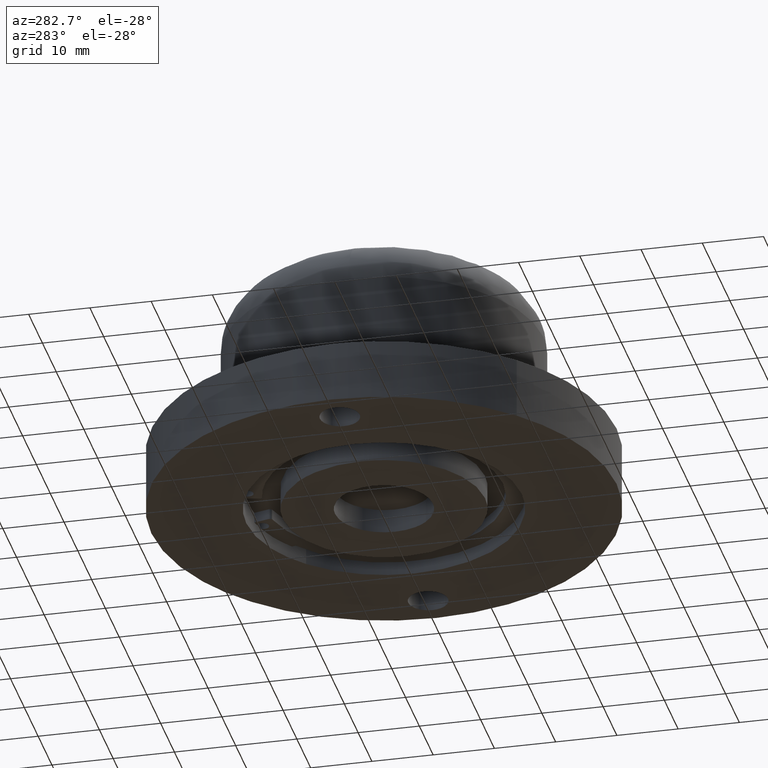
[diagram: clean part render]
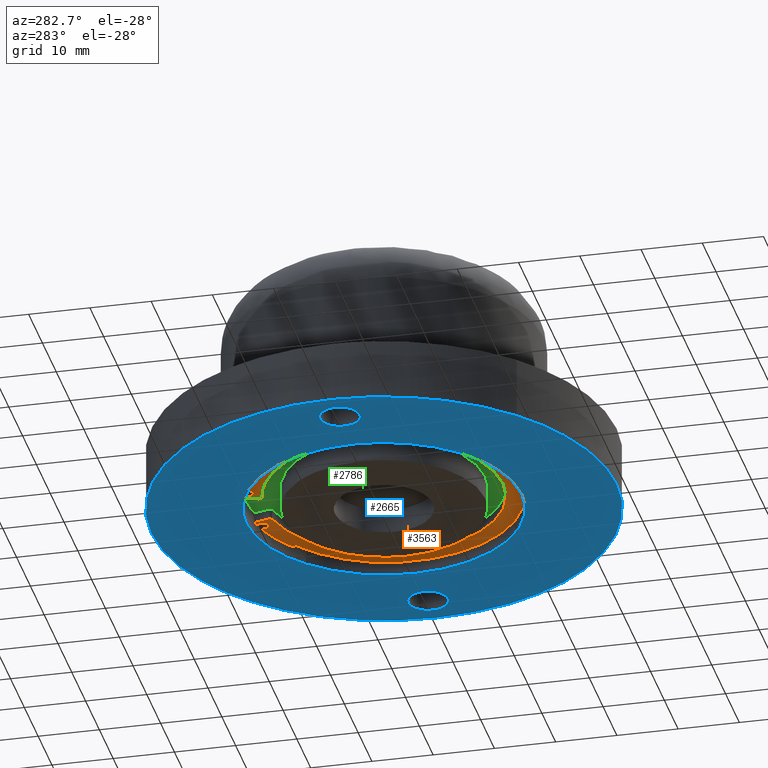
[diagram: same view with three faces highlighted in distinct colors, each labeled with its STEP entity id]
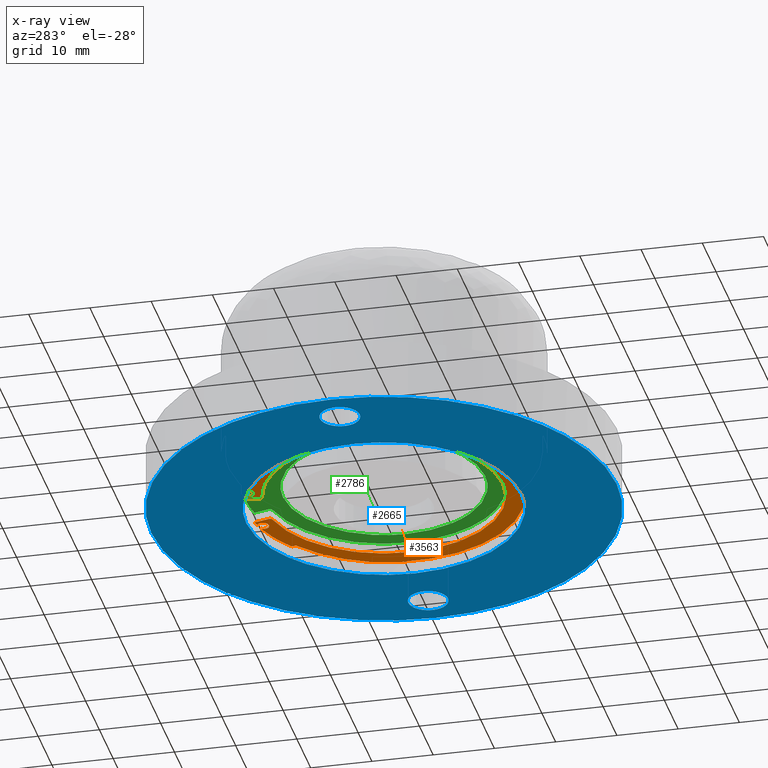
[diagram: x-ray of the same camera — body ghosted, the three highlighted faces saturated]
A machine part, auxiliary view with three faces highlighted in distinct colors.
The next image is the same camera in x-ray (body ghosted, the three faces saturated) — at least one of them is partly hidden behind the body in this view.
Their STEP definitions:

[orange] entity #3563 — the highlighted face is a freeform B-spline surface patch.
#2364=CARTESIAN_POINT('',(-6.504722062905779,21.539233758059900,2.250000000000085));
#2365=VERTEX_POINT('',#2364);
#2366=CARTESIAN_POINT('',(-5.136362327996740,21.905884643984049,2.249999999999975));
#2367=VERTEX_POINT('',#2366);
#2470=CARTESIAN_POINT('',(5.136362327996699,21.905884643983999,2.249999999999975));
#2471=VERTEX_POINT('',#2470);
#2472=CARTESIAN_POINT('',(6.504722062905819,21.539233758059851,2.249999999999970));
#2473=VERTEX_POINT('',#2472);
#2847=CARTESIAN_POINT('',(-6.312171169114644,20.302284074650530,2.250000000000106));
#2848=VERTEX_POINT('',#2847);
#2854=CARTESIAN_POINT('',(-6.312171169114644,20.302284074650530,2.250000000000106));
#2855=CARTESIAN_POINT('',(-6.416383391773703,20.397166936087139,2.250000000000095));
#2856=CARTESIAN_POINT('',(-6.558240632495775,20.596766599283960,2.250000000000157));
#2857=CARTESIAN_POINT('',(-6.646187884085510,20.927145782094339,2.250000000000107));
#2858=CARTESIAN_POINT('',(-6.634936964007559,21.240335830424051,2.250000000000134));
#2859=CARTESIAN_POINT('',(-6.560984592984557,21.441550050577401,2.250000000000097));
#2860=CARTESIAN_POINT('',(-6.504722062905779,21.539233758059900,2.250000000000085));
#2861=B_SPLINE_CURVE_WITH_KNOTS('',3,(#2854,#2855,#2856,#2857,#2858,#2859,#2860),.UNSPECIFIED.,.F.,.U.,(4,1,1,1,4),(0.000122839926365,0.422820162561483,0.718684387555695,1.014569275601120,1.352716452794659),.UNSPECIFIED.);
#2862=EDGE_CURVE('',#2848,#2365,#2861,.T.);
#2865=CARTESIAN_POINT('',(-4.963514374680182,21.779147254104078,2.249999999999975));
#2866=VERTEX_POINT('',#2865);
#2867=CARTESIAN_POINT('',(-5.136362327996740,21.905884643984049,2.249999999999975));
#2868=CARTESIAN_POINT('',(-5.074426129797087,21.869995684440429,2.249999999999976));
#2869=CARTESIAN_POINT('',(-5.016369266816841,21.827420537405679,2.249999999999974));
#2870=CARTESIAN_POINT('',(-4.963514374680182,21.779147254104078,2.249999999999975));
#2871=B_SPLINE_CURVE_WITH_KNOTS('',3,(#2867,#2868,#2869,#2870),.UNSPECIFIED.,.F.,.U.,(4,4),(3.633514E-009,0.214752179580949),.UNSPECIFIED.);
#2872=EDGE_CURVE('',#2367,#2866,#2871,.T.);
#2902=CARTESIAN_POINT('',(-5.379026468600185,20.074789101153410,2.249999999999975));
#2903=VERTEX_POINT('',#2902);
#2904=CARTESIAN_POINT('',(-4.963514374680182,21.779147254104078,2.249999999999975));
#2905=CARTESIAN_POINT('',(-4.872920642263459,21.696544796178330,2.249999999999974));
#2906=CARTESIAN_POINT('',(-4.743267363373490,21.524616153540261,2.249999999999978));
#2907=CARTESIAN_POINT('',(-4.637817434005048,21.216010359638869,2.249999999999975));
#2908=CARTESIAN_POINT('',(-4.629481717158361,20.922318285553239,2.249999999999973));
#2909=CARTESIAN_POINT('',(-4.702195775323349,20.662424386940781,2.249999999999977));
#2910=CARTESIAN_POINT('',(-4.821757503324911,20.446972200834079,2.249999999999972));
#2911=CARTESIAN_POINT('',(-5.026563158911688,20.222823610502470,2.249999999999983));
#2912=CARTESIAN_POINT('',(-5.239005207386325,20.112106456927350,2.249999999999964));
#2913=CARTESIAN_POINT('',(-5.379026468600185,20.074789101153410,2.249999999999975));
#2914=B_SPLINE_CURVE_WITH_KNOTS('',3,(#2904,#2905,#2906,#2907,#2908,#2909,#2910,#2911,#2912,#2913),.UNSPECIFIED.,.F.,.U.,(4,1,1,1,1,1,1,4),(0.000000368233680,0.367780815319638,0.635276256299099,0.969660120584307,1.237073059229755,1.437703518811497,1.705196927799982,2.139840899861273),.UNSPECIFIED.);
#2915=EDGE_CURVE('',#2866,#2903,#2914,.T.);
#2917=CARTESIAN_POINT('',(-5.379026468600185,20.074789101153410,2.249999999999975));
#2918=CARTESIAN_POINT('',(-5.479827288248405,20.047718745227339,2.249999999999991));
#2919=CARTESIAN_POINT('',(-5.658408701677362,20.028970932187828,2.250000000000021));
#2920=CARTESIAN_POINT('',(-5.990095498457229,20.082677847195122,2.250000000000064));
#2921=CARTESIAN_POINT('',(-6.196706472943397,20.196482796463432,2.250000000000099));
#2922=CARTESIAN_POINT('',(-6.312171169114644,20.302284074650530,2.250000000000106));
#2923=B_SPLINE_CURVE_WITH_KNOTS('',3,(#2917,#2918,#2919,#2920,#2921,#2922),.UNSPECIFIED.,.F.,.U.,(4,1,1,4),(0.000000112901919,0.313098357863654,0.532237308316472,1.001892275718801),.UNSPECIFIED.);
#2924=EDGE_CURVE('',#2903,#2848,#2923,.T.);
#2953=CARTESIAN_POINT('',(6.376274358292480,20.366387263861871,2.249999999999969));
#2954=VERTEX_POINT('',#2953);
#2960=CARTESIAN_POINT('',(5.379026468600166,20.074789101153421,2.249999999999975));
#2961=VERTEX_POINT('',#2960);
#2962=CARTESIAN_POINT('',(5.379026468600166,20.074789101153421,2.249999999999975));
#2963=CARTESIAN_POINT('',(5.499933421449372,20.042269236700591,2.249999999999972));
#2964=CARTESIAN_POINT('',(5.719383163697515,20.026212146663671,2.249999999999973));
#2965=CARTESIAN_POINT('',(6.075563554408000,20.117211312162080,2.249999999999971));
#2966=CARTESIAN_POINT('',(6.276625452893003,20.256970067887440,2.249999999999968));
#2967=CARTESIAN_POINT('',(6.376274358292480,20.366387263861871,2.249999999999969));
#2968=B_SPLINE_CURVE_WITH_KNOTS('',3,(#2962,#2963,#2964,#2965,#2966,#2967),.UNSPECIFIED.,.F.,.U.,(4,1,1,4),(0.000000128077817,0.375581162779700,0.648707384517050,1.092591086383734),.UNSPECIFIED.);
#2969=EDGE_CURVE('',#2961,#2954,#2968,.T.);
#2971=CARTESIAN_POINT('',(4.899411178894919,21.715044058357631,2.249999999999975));
#2972=VERTEX_POINT('',#2971);
#2973=CARTESIAN_POINT('',(4.899411178894919,21.715044058357631,2.249999999999975));
#2974=CARTESIAN_POINT('',(4.805698235354931,21.612698499224820,2.249999999999977));
#2975=CARTESIAN_POINT('',(4.684305121484887,21.405803896189170,2.249999999999975));
#2976=CARTESIAN_POINT('',(4.628417369453588,21.098105802734299,2.249999999999974));
#2977=CARTESIAN_POINT('',(4.648126617718331,20.841120423847080,2.249999999999977));
#2978=CARTESIAN_POINT('',(4.741718801706170,20.554711304281970,2.249999999999973));
#2979=CARTESIAN_POINT('',(4.973541006094423,20.251505484824939,2.249999999999976));
#2980=CARTESIAN_POINT('',(5.234632174036261,20.113288414755718,2.249999999999974));
#2981=CARTESIAN_POINT('',(5.379026468600166,20.074789101153421,2.249999999999975));
#2982=B_SPLINE_CURVE_WITH_KNOTS('',3,(#2973,#2974,#2975,#2976,#2977,#2978,#2979,#2980,#2981),.UNSPECIFIED.,.F.,.U.,(4,1,1,1,1,1,4),(0.000000368137612,0.416229747130578,0.704396661235459,0.928559266678233,1.184658865413482,1.600893468974274,2.049142085123653),.UNSPECIFIED.);
#2983=EDGE_CURVE('',#2972,#2961,#2982,.T.);
#3013=CARTESIAN_POINT('',(5.136362327996699,21.905884643983999,2.249999999999975));
#3014=CARTESIAN_POINT('',(5.048254058440100,21.854860197465531,2.249999999999974));
#3015=CARTESIAN_POINT('',(4.968050698186832,21.790238600326330,2.249999999999976));
#3016=CARTESIAN_POINT('',(4.899411178894919,21.715044058357631,2.249999999999975));
#3017=B_SPLINE_CURVE_WITH_KNOTS('',3,(#3013,#3014,#3015,#3016),.UNSPECIFIED.,.F.,.U.,(4,4),(0.000000010140297,0.305450952969728),.UNSPECIFIED.);
#3018=EDGE_CURVE('',#2471,#2972,#3017,.T.);
#3021=CARTESIAN_POINT('',(6.376274358292480,20.366387263861871,2.249999999999969));
#3022=CARTESIAN_POINT('',(6.456140904911924,20.453693318852011,2.249999999999967));
#3023=CARTESIAN_POINT('',(6.548579699317094,20.600603842245210,2.249999999999972));
#3024=CARTESIAN_POINT('',(6.632086142666705,20.864631804244539,2.249999999999966));
#3025=CARTESIAN_POINT('',(6.653442085350267,21.169998022540511,2.249999999999971));
#3026=CARTESIAN_POINT('',(6.576998066471693,21.413957569555262,2.249999999999970));
#3027=CARTESIAN_POINT('',(6.504722062905819,21.539233758059851,2.249999999999970));
#3028=B_SPLINE_CURVE_WITH_KNOTS('',3,(#3021,#3022,#3023,#3024,#3025,#3026,#3027),.UNSPECIFIED.,.F.,.U.,(4,1,1,1,4),(0.000000109298840,0.354949222733448,0.512710383566027,0.828192344351823,1.262025013003576),.UNSPECIFIED.);
#3029=EDGE_CURVE('',#2954,#2473,#3028,.T.);
#3058=CARTESIAN_POINT('',(-15.588206031640730,-16.225222116048808,2.250000000000231));
#3059=VERTEX_POINT('',#3058);
#3065=CARTESIAN_POINT('',(-0.000000973178539,-22.499999999999979,2.250000000000085));
#3066=VERTEX_POINT('',#3065);
#3067=CARTESIAN_POINT('',(-0.000000973178539,-22.499999999999979,2.250000000000085));
#3068=CARTESIAN_POINT('',(-1.031464537365645,-22.500034189043280,2.250000000000103));
#3069=CARTESIAN_POINT('',(-3.273784162294135,-22.345576397595099,2.250000000000133));
#3070=CARTESIAN_POINT('',(-6.304617732022301,-21.673422132211449,2.250000000000171));
#3071=CARTESIAN_POINT('',(-9.462565108374351,-20.499933379318250,2.250000000000202));
#3072=CARTESIAN_POINT('',(-12.545115556580919,-18.818822723518341,2.250000000000223));
#3073=CARTESIAN_POINT('',(-14.618089571007770,-17.157402602431951,2.250000000000231));
#3074=CARTESIAN_POINT('',(-15.588206031640730,-16.225222116048808,2.250000000000231));
#3075=B_SPLINE_CURVE_WITH_KNOTS('',3,(#3067,#3068,#3069,#3070,#3071,#3072,#3073,#3074),.UNSPECIFIED.,.F.,.U.,(4,1,1,1,1,4),(0.000000014216898,3.094395116773921,6.726970710326494,9.283186606547154,13.184840119859601,17.221014872080300),.UNSPECIFIED.);
#3076=EDGE_CURVE('',#3066,#3059,#3075,.T.);
#3078=CARTESIAN_POINT('',(21.461298704985900,6.757415030569860,2.249999999999405));
#3079=VERTEX_POINT('',#3078);
#3080=CARTESIAN_POINT('',(21.461298704985900,6.757415030569860,2.249999999999405));
#3081=CARTESIAN_POINT('',(21.874060171797399,5.446979462053194,2.249999999999425));
#3082=CARTESIAN_POINT('',(22.411583275024011,2.965952034556976,2.249999999999453));
#3083=CARTESIAN_POINT('',(22.562500829329220,-0.392911894650313,2.249999999999486));
#3084=CARTESIAN_POINT('',(22.270921337241340,-3.737647167205898,2.249999999999577));
#3085=CARTESIAN_POINT('',(21.479142796887089,-7.066357372958608,2.249999999999601));
#3086=CARTESIAN_POINT('',(20.086332904471760,-10.308497361590350,2.249999999999689));
#3087=CARTESIAN_POINT('',(18.305984844463339,-13.221417369801671,2.249999999999741));
#3088=CARTESIAN_POINT('',(16.433778789938270,-15.466136984073680,2.249999999999800));
#3089=CARTESIAN_POINT('',(14.409204705636320,-17.328567037289279,2.249999999999844));
#3090=CARTESIAN_POINT('',(12.650041573775731,-18.651577739959940,2.249999999999889));
#3091=CARTESIAN_POINT('',(10.675095125591740,-19.851287354860169,2.249999999999929));
#3092=CARTESIAN_POINT('',(8.040044099831034,-21.102655623814648,2.249999999999959));
#3093=CARTESIAN_POINT('',(4.451367186854829,-22.200054073947602,2.250000000000076));
#3094=CARTESIAN_POINT('',(1.538781866729575,-22.500210672231809,2.250000000000036));
#3095=CARTESIAN_POINT('',(-0.000000973178539,-22.499999999999979,2.250000000000085));
#3096=B_SPLINE_CURVE_WITH_KNOTS('',3,(#3080,#3081,#3082,#3083,#3084,#3085,#3086,#3087,#3088,#3089,#3090,#3091,#3092,#3093,#3094,#3095),.UNSPECIFIED.,.F.,.U.,(4,1,1,1,1,1,1,1,1,1,1,1,1,4),(0.000000051172144,4.121689372997068,7.583956688152156,10.056985513913750,14.178717154172880,17.805814164527028,20.608625583875600,24.400548004355478,26.543829045678908,28.852002970672320,30.995303535835859,33.468341797129277,37.590060066702897,42.206370948490303),.UNSPECIFIED.);
#3097=EDGE_CURVE('',#3079,#3066,#3096,.T.);
#3134=CARTESIAN_POINT('',(13.429906843272720,18.052357247213351,2.249999999999975));
#3135=VERTEX_POINT('',#3134);
#3141=CARTESIAN_POINT('',(6.504722062905819,21.539233758059851,2.249999999999970));
#3142=CARTESIAN_POINT('',(7.825749606657813,21.140452039059269,2.250000000000028));
#3143=CARTESIAN_POINT('',(10.242878679704710,20.159882068117909,2.250000000000089));
#3144=CARTESIAN_POINT('',(12.453067975057310,18.779163440677451,2.250000000000020));
#3145=CARTESIAN_POINT('',(13.429906843272720,18.052357247213351,2.249999999999975));
#3146=B_SPLINE_CURVE_WITH_KNOTS('',3,(#3141,#3142,#3143,#3144,#3145),.UNSPECIFIED.,.F.,.U.,(4,1,4),(2.658856E-009,4.139694375157747,7.792376969703537),.UNSPECIFIED.);
#3147=EDGE_CURVE('',#2473,#3135,#3146,.T.);
#3150=CARTESIAN_POINT('',(4.164708885764285,22.111200779171551,2.249999999999975));
#3151=VERTEX_POINT('',#3150);
#3152=CARTESIAN_POINT('',(4.164708885764285,22.111200779171551,2.249999999999975));
#3153=CARTESIAN_POINT('',(4.490051368506639,22.049921979212961,2.250000000000079));
#3154=CARTESIAN_POINT('',(4.814041090165105,21.981460827876461,2.250000000000085));
#3155=CARTESIAN_POINT('',(5.136362327996699,21.905884643983999,2.249999999999975));
#3156=B_SPLINE_CURVE_WITH_KNOTS('',3,(#3152,#3153,#3154,#3155),.UNSPECIFIED.,.F.,.U.,(4,4),(3.004352E-011,0.993190711665721),.UNSPECIFIED.);
#3157=EDGE_CURVE('',#3151,#2471,#3156,.T.);
#3165=CARTESIAN_POINT('',(-4.164708885764300,22.111200779171551,2.249999999999975));
#3166=VERTEX_POINT('',#3165);
#3172=CARTESIAN_POINT('',(-5.136362327996740,21.905884643984049,2.249999999999975));
#3173=CARTESIAN_POINT('',(-4.814041013303416,21.981461045695742,2.250000000000080));
#3174=CARTESIAN_POINT('',(-4.490051210096848,22.049921811107961,2.250000000000088));
#3175=CARTESIAN_POINT('',(-4.164708885764300,22.111200779171551,2.249999999999975));
#3176=B_SPLINE_CURVE_WITH_KNOTS('',3,(#3172,#3173,#3174,#3175),.UNSPECIFIED.,.F.,.U.,(4,4),(3.001910E-011,0.993190711665735),.UNSPECIFIED.);
#3177=EDGE_CURVE('',#2367,#3166,#3176,.T.);
#3180=CARTESIAN_POINT('',(-13.429906843272740,18.052357247213351,2.249999999999975));
#3181=VERTEX_POINT('',#3180);
#3182=CARTESIAN_POINT('',(-13.429906843272740,18.052357247213351,2.249999999999975));
#3183=CARTESIAN_POINT('',(-12.127546399424160,19.021590214097401,2.250000000000024));
#3184=CARTESIAN_POINT('',(-9.874924738383793,20.345086119490379,2.250000000000066));
#3185=CARTESIAN_POINT('',(-7.437173862098574,21.257648964394718,2.250000000000092));
#3186=CARTESIAN_POINT('',(-6.504722062905779,21.539233758059900,2.250000000000085));
#3187=B_SPLINE_CURVE_WITH_KNOTS('',3,(#3182,#3183,#3184,#3185,#3186),.UNSPECIFIED.,.F.,.U.,(4,1,4),(2.657263E-009,4.870235564347039,7.792376969703619),.UNSPECIFIED.);
#3188=EDGE_CURVE('',#3181,#2365,#3187,.T.);
#3196=CARTESIAN_POINT('',(-21.461298704985850,6.757415030569869,2.249999999999975));
#3197=VERTEX_POINT('',#3196);
#3203=CARTESIAN_POINT('',(-15.588206031640730,-16.225222116048808,2.250000000000231));
#3204=CARTESIAN_POINT('',(-16.151249505209471,-15.684291293318550,2.250000000000231));
#3205=CARTESIAN_POINT('',(-17.443860080371380,-14.306153364236280,2.250000000000231));
#3206=CARTESIAN_POINT('',(-19.014549700930392,-12.140902122889690,2.250000000000225));
#3207=CARTESIAN_POINT('',(-20.299377398937779,-9.798845602539418,2.250000000000207));
#3208=CARTESIAN_POINT('',(-21.207731091901881,-7.636334505541870,2.250000000000194));
#3209=CARTESIAN_POINT('',(-22.037408065302319,-4.892231861658053,2.250000000000155));
#3210=CARTESIAN_POINT('',(-22.530682785145839,-1.730245838730146,2.250000000000115));
#3211=CARTESIAN_POINT('',(-22.507123157731218,2.380021194033896,2.250000000000067));
#3212=CARTESIAN_POINT('',(-21.969694366550680,5.143869145987814,2.249999999999993));
#3213=CARTESIAN_POINT('',(-21.461298704985850,6.757415030569869,2.249999999999975));
#3214=B_SPLINE_CURVE_WITH_KNOTS('',3,(#3203,#3204,#3205,#3206,#3207,#3208,#3209,#3210,#3211,#3212,#3213),.UNSPECIFIED.,.F.,.U.,(4,1,1,1,1,1,1,1,4),(3.581281E-009,2.342361476444427,5.660743957281731,8.003130144586887,10.345505795545041,12.687879596696771,16.591834669168829,19.910217200046372,24.985363715567939),.UNSPECIFIED.);
#3215=EDGE_CURVE('',#3059,#3197,#3214,.T.);
#3237=CARTESIAN_POINT('',(-3.512016743121135,19.675320541125551,2.250000000000085));
#3238=VERTEX_POINT('',#3237);
#3239=CARTESIAN_POINT('',(-3.894854852850500,19.056038561968400,2.250000000000085));
#3240=VERTEX_POINT('',#3239);
#3241=CARTESIAN_POINT('',(-3.512016743121135,19.675320541125551,2.250000000000085));
#3242=CARTESIAN_POINT('',(-3.496597740436827,19.617896132854320,2.250000000000084));
#3243=CARTESIAN_POINT('',(-3.485832672813332,19.488861442252720,2.250000000000085));
#3244=CARTESIAN_POINT('',(-3.544485727923022,19.298219875914651,2.250000000000083));
#3245=CARTESIAN_POINT('',(-3.685342527558657,19.133332341205481,2.250000000000086));
#3246=CARTESIAN_POINT('',(-3.819901803666915,19.071234408235799,2.250000000000082));
#3247=CARTESIAN_POINT('',(-3.894854852850500,19.056038561968400,2.250000000000085));
#3248=B_SPLINE_CURVE_WITH_KNOTS('',3,(#3241,#3242,#3243,#3244,#3245,#3246,#3247),.UNSPECIFIED.,.F.,.U.,(4,1,1,1,4),(0.000000308844179,0.178406312504339,0.382317720254590,0.586196005681690,0.815579695198671),.UNSPECIFIED.);
#3249=EDGE_CURVE('',#3238,#3240,#3248,.T.);
#3291=CARTESIAN_POINT('',(3.894854852850480,19.056038561968450,2.250000000000085));
#3292=VERTEX_POINT('',#3291);
#3293=CARTESIAN_POINT('',(-0.000001468602950,-19.449999999999939,2.250000000000085));
#3294=VERTEX_POINT('',#3293);
#3295=CARTESIAN_POINT('',(3.894854852850480,19.056038561968450,2.250000000000085));
#3296=CARTESIAN_POINT('',(5.025589043281542,18.825045353449440,2.250000000000088));
#3297=CARTESIAN_POINT('',(6.744308164810754,18.310787155708692,2.250000000000082));
#3298=CARTESIAN_POINT('',(9.253231189661031,17.164959537741410,2.250000000000088));
#3299=CARTESIAN_POINT('',(11.255967796559910,15.931855800931750,2.250000000000086));
#3300=CARTESIAN_POINT('',(13.279157417113369,14.282504082398569,2.250000000000088));
#3301=CARTESIAN_POINT('',(15.079743519031609,12.390060729805990,2.250000000000086));
#3302=CARTESIAN_POINT('',(16.548440139895639,10.319471893616051,2.250000000000096));
#3303=CARTESIAN_POINT('',(17.813130450484579,7.952071618770485,2.250000000000116));
#3304=CARTESIAN_POINT('',(18.822437038177480,5.259137311783631,2.250000000000081));
#3305=CARTESIAN_POINT('',(19.384658534730018,2.322382515282473,2.250000000000091));
#3306=CARTESIAN_POINT('',(19.514071443056508,-0.919813976811664,2.250000000000085));
#3307=CARTESIAN_POINT('',(19.153070524423001,-3.891225334095790,2.250000000000096));
#3308=CARTESIAN_POINT('',(18.351803625930270,-6.572833677688530,2.250000000000067));
#3309=CARTESIAN_POINT('',(17.352990331759219,-8.901899020231332,2.250000000000185));
#3310=CARTESIAN_POINT('',(16.028051674911278,-11.155716117882220,2.249999999999861));
#3311=CARTESIAN_POINT('',(14.229651175231460,-13.350196006114540,2.250000000000685));
#3312=CARTESIAN_POINT('',(12.449716916438620,-14.996667782549610,2.249999999999778));
#3313=CARTESIAN_POINT('',(10.588595465724289,-16.366535121242219,2.250000000000241));
#3314=CARTESIAN_POINT('',(8.677930772132839,-17.459664244855951,2.250000000000044));
#3315=CARTESIAN_POINT('',(6.410565650351489,-18.415822508436641,2.250000000000112));
#3316=CARTESIAN_POINT('',(3.573829529007940,-19.218172538398498,2.249999999999993));
#3317=CARTESIAN_POINT('',(1.340231225085588,-19.450207738514440,2.250000000000266));
#3318=CARTESIAN_POINT('',(-0.000001468602950,-19.449999999999939,2.250000000000085));
#3319=B_SPLINE_CURVE_WITH_KNOTS('',3,(#3295,#3296,#3297,#3298,#3299,#3300,#3301,#3302,#3303,#3304,#3305,#3306,#3307,#3308,#3309,#3310,#3311,#3312,#3313,#3314,#3315,#3316,#3317,#3318),.UNSPECIFIED.,.F.,.U.,(4,1,1,1,1,1,1,1,1,1,1,1,1,1,1,1,1,1,1,1,1,4),(0.000000156537659,3.462231502762762,5.360832876183245,8.264686453655898,10.498385439586610,13.178819961996760,16.082634885327110,18.092973017455378,21.220149976796041,24.682422540876122,27.027818714448500,30.936707467747731,33.617141566312533,35.404121310167277,38.531299494523772,41.435106361248607,43.892188869480059,45.790831306133803,48.359586177161248,50.481627546288877,53.162037698420782,57.182690488304900),.UNSPECIFIED.);
#3320=EDGE_CURVE('',#3292,#3294,#3319,.T.);
#3322=CARTESIAN_POINT('',(-0.000001468602950,-19.449999999999939,2.250000000000085));
#3323=CARTESIAN_POINT('',(-1.154080680420478,-19.450094256156799,2.250000000000083));
#3324=CARTESIAN_POINT('',(-3.536668635029115,-19.237364174333550,2.250000000000094));
#3325=CARTESIAN_POINT('',(-6.741853596378408,-18.340868303559819,2.250000000000074));
#3326=CARTESIAN_POINT('',(-9.342916832548125,-17.118473211989329,2.250000000000104));
#3327=CARTESIAN_POINT('',(-11.388930062663240,-15.819678495364490,2.250000000000071));
#3328=CARTESIAN_POINT('',(-13.505304625897720,-14.106881077138530,2.250000000000098));
#3329=CARTESIAN_POINT('',(-15.436891666899340,-11.971415989063990,2.250000000000080));
#3330=CARTESIAN_POINT('',(-16.896628660942390,-9.716332167721438,2.250000000000088));
#3331=CARTESIAN_POINT('',(-17.960970969159380,-7.581857674579639,2.250000000000090));
#3332=CARTESIAN_POINT('',(-18.920086537400980,-4.912278534093272,2.250000000000104));
#3333=CARTESIAN_POINT('',(-19.434094185454249,-1.963467057874269,2.249999999999968));
#3334=CARTESIAN_POINT('',(-19.476625310099440,0.944832257689591,2.250000000000151));
#3335=CARTESIAN_POINT('',(-19.197175792528739,3.503982371062335,2.250000000000048));
#3336=CARTESIAN_POINT('',(-18.423107598083501,6.542893809479302,2.250000000000112));
#3337=CARTESIAN_POINT('',(-17.174566398265910,9.304482217615105,2.250000000000079));
#3338=CARTESIAN_POINT('',(-15.533327035976191,11.795637898164459,2.250000000000088));
#3339=CARTESIAN_POINT('',(-14.070698034794351,13.491467722019671,2.250000000000088));
#3340=CARTESIAN_POINT('',(-12.179371042694390,15.233211519276100,2.250000000000094));
#3341=CARTESIAN_POINT('',(-9.865256146860450,16.878154134759800,2.250000000000023));
#3342=CARTESIAN_POINT('',(-6.926341785051450,18.271669566170289,2.250000000000270));
#3343=CARTESIAN_POINT('',(-4.843171536192615,18.862246511154819,2.249999999999886));
#3344=CARTESIAN_POINT('',(-3.894854852850500,19.056038561968400,2.250000000000085));
#3345=B_SPLINE_CURVE_WITH_KNOTS('',3,(#3322,#3323,#3324,#3325,#3326,#3327,#3328,#3329,#3330,#3331,#3332,#3333,#3334,#3335,#3336,#3337,#3338,#3339,#3340,#3341,#3342,#3343,#3344),.UNSPECIFIED.,.F.,.U.,(4,1,1,1,1,1,1,1,1,1,1,1,1,1,1,1,1,1,1,1,4),(0.000000156245683,3.462231324680246,7.147835191505934,9.939960465852444,12.061963164990271,14.407359627613181,18.092972087901149,20.661722995647271,22.448688543998760,25.240817569383580,29.149708431952121,31.383408484220801,33.952216487796512,36.856019928289093,40.764999113819087,42.998702342944163,45.790828954004724,47.466107134645377,50.704965077655920,54.278936820754410,57.182687551086900),.UNSPECIFIED.);
#3346=EDGE_CURVE('',#3294,#3240,#3345,.T.);
#3373=CARTESIAN_POINT('',(3.512016743121080,19.675320541125551,2.250000000000085));
#3374=VERTEX_POINT('',#3373);
#3375=CARTESIAN_POINT('',(3.894854852850480,19.056038561968450,2.250000000000085));
#3376=CARTESIAN_POINT('',(3.836588689064578,19.067908924275759,2.250000000000083));
#3377=CARTESIAN_POINT('',(3.716364756842444,19.115971617661149,2.250000000000087));
#3378=CARTESIAN_POINT('',(3.572030404018416,19.253643954271901,2.250000000000084));
#3379=CARTESIAN_POINT('',(3.487522421294356,19.453355790870958,2.250000000000089));
#3380=CARTESIAN_POINT('',(3.492094288250960,19.601479568231760,2.250000000000079));
#3381=CARTESIAN_POINT('',(3.512016743121080,19.675320541125551,2.250000000000085));
#3382=B_SPLINE_CURVE_WITH_KNOTS('',3,(#3375,#3376,#3377,#3378,#3379,#3380,#3381),.UNSPECIFIED.,.F.,.U.,(4,1,1,1,4),(0.000000308843853,0.178406312504135,0.382317720254388,0.586196005681576,0.815579695198659),.UNSPECIFIED.);
#3383=EDGE_CURVE('',#3292,#3374,#3382,.T.);
#3400=CARTESIAN_POINT('',(4.164708885764285,22.111200779171551,2.249999999999975));
#3401=CARTESIAN_POINT('',(3.512016743121080,19.675320541125551,2.250000000000085));
#3402=QUASI_UNIFORM_CURVE('',1,(#3400,#3401),.UNSPECIFIED.,.F.,.U.);
#3403=EDGE_CURVE('',#3151,#3374,#3402,.T.);
#3416=CARTESIAN_POINT('',(13.253374492729661,17.393529545806899,2.250000000000085));
#3417=VERTEX_POINT('',#3416);
#3418=CARTESIAN_POINT('',(13.253374492729661,17.393529545806899,2.250000000000085));
#3419=CARTESIAN_POINT('',(13.429906843272720,18.052357247213351,2.249999999999975));
#3420=QUASI_UNIFORM_CURVE('',1,(#3418,#3419),.UNSPECIFIED.,.F.,.U.);
#3421=EDGE_CURVE('',#3417,#3135,#3420,.T.);
#3447=CARTESIAN_POINT('',(13.253374492729661,17.393529545806899,2.250000000000085));
#3448=CARTESIAN_POINT('',(14.557476105780580,16.470222733454261,2.250000000000174));
#3449=CARTESIAN_POINT('',(16.381122750285900,14.867728924620989,2.250000000000191));
#3450=CARTESIAN_POINT('',(18.355203628952228,12.485875640740650,2.250000000000093));
#3451=CARTESIAN_POINT('',(20.007602618700609,10.042093391134570,2.249999999999839));
#3452=CARTESIAN_POINT('',(20.948714499289508,8.120020740373233,2.249999999999630));
#3453=CARTESIAN_POINT('',(21.461298704985900,6.757415030569860,2.249999999999405));
#3454=B_SPLINE_CURVE_WITH_KNOTS('',3,(#3447,#3448,#3449,#3450,#3451,#3452,#3453),.UNSPECIFIED.,.F.,.U.,(4,1,1,1,4),(7.335942E-009,4.793524828138516,7.243538612450060,9.267473578738052,13.634908230116650),.UNSPECIFIED.);
#3455=EDGE_CURVE('',#3417,#3079,#3454,.T.);
#3477=CARTESIAN_POINT('',(-13.253374492729661,17.393529545806899,2.250000000000085));
#3478=VERTEX_POINT('',#3477);
#3479=CARTESIAN_POINT('',(-21.461298704985850,6.757415030569869,2.249999999999975));
#3480=CARTESIAN_POINT('',(-20.948711077253972,8.120018441411762,2.249999999999996));
#3481=CARTESIAN_POINT('',(-19.976236612416209,10.106165067479180,2.250000000000025));
#3482=CARTESIAN_POINT('',(-18.231953573007150,12.660204144933809,2.250000000000056));
#3483=CARTESIAN_POINT('',(-16.224325651970759,15.014893282116139,2.250000000000097));
#3484=CARTESIAN_POINT('',(-14.441517594120800,16.552253956049679,2.250000000000076));
#3485=CARTESIAN_POINT('',(-13.253374492729661,17.393529545806899,2.250000000000085));
#3486=B_SPLINE_CURVE_WITH_KNOTS('',3,(#3479,#3480,#3481,#3482,#3483,#3484,#3485),.UNSPECIFIED.,.F.,.U.,(4,1,1,1,4),(7.338812E-009,4.367434658718070,6.604412366819719,9.267473578738684,13.634908230116620),.UNSPECIFIED.);
#3487=EDGE_CURVE('',#3197,#3478,#3486,.T.);
#3504=CARTESIAN_POINT('',(-13.429906843272740,18.052357247213351,2.249999999999975));
#3505=CARTESIAN_POINT('',(-13.253374492729661,17.393529545806899,2.250000000000085));
#3506=QUASI_UNIFORM_CURVE('',1,(#3504,#3505),.UNSPECIFIED.,.F.,.U.);
#3507=EDGE_CURVE('',#3181,#3478,#3506,.T.);
#3520=CARTESIAN_POINT('',(-3.512016743121135,19.675320541125551,2.250000000000085));
#3521=CARTESIAN_POINT('',(-4.164708885764300,22.111200779171551,2.249999999999975));
#3522=QUASI_UNIFORM_CURVE('',1,(#3520,#3521),.UNSPECIFIED.,.F.,.U.);
#3523=EDGE_CURVE('',#3238,#3166,#3522,.T.);
#3531=CARTESIAN_POINT('',(-24.746794026400970,24.339530171626009,2.250000000000000));
#3532=CARTESIAN_POINT('',(24.747016058040941,24.339530171626009,2.250000000000000));
#3533=CARTESIAN_POINT('',(-24.746794026400970,-24.728330589020079,2.250000000000000));
#3534=CARTESIAN_POINT('',(24.747016058040941,-24.728330589020079,2.250000000000000));
#3535=B_SPLINE_SURFACE_WITH_KNOTS('',1,1,((#3531,#3533),(#3532,#3534)),.UNSPECIFIED.,.F.,.F.,.U.,(2,2),(2,2),(0.0,49.493810084441897),(0.0,49.067860760646077),.UNSPECIFIED.);
#3536=ORIENTED_EDGE('',*,*,#3188,.T.);
#3537=ORIENTED_EDGE('',*,*,#2862,.F.);
#3538=ORIENTED_EDGE('',*,*,#2924,.F.);
#3539=ORIENTED_EDGE('',*,*,#2915,.F.);
#3540=ORIENTED_EDGE('',*,*,#2872,.F.);
#3541=ORIENTED_EDGE('',*,*,#3177,.T.);
#3542=ORIENTED_EDGE('',*,*,#3523,.F.);
#3543=ORIENTED_EDGE('',*,*,#3249,.T.);
#3544=ORIENTED_EDGE('',*,*,#3346,.F.);
#3545=ORIENTED_EDGE('',*,*,#3320,.F.);
#3546=ORIENTED_EDGE('',*,*,#3383,.T.);
#3547=ORIENTED_EDGE('',*,*,#3403,.F.);
#3548=ORIENTED_EDGE('',*,*,#3157,.T.);
#3549=ORIENTED_EDGE('',*,*,#3018,.T.);
#3550=ORIENTED_EDGE('',*,*,#2983,.T.);
#3551=ORIENTED_EDGE('',*,*,#2969,.T.);
#3552=ORIENTED_EDGE('',*,*,#3029,.T.);
#3553=ORIENTED_EDGE('',*,*,#3147,.T.);
#3554=ORIENTED_EDGE('',*,*,#3421,.F.);
#3555=ORIENTED_EDGE('',*,*,#3455,.T.);
#3556=ORIENTED_EDGE('',*,*,#3097,.T.);
#3557=ORIENTED_EDGE('',*,*,#3076,.T.);
#3558=ORIENTED_EDGE('',*,*,#3215,.T.);
#3559=ORIENTED_EDGE('',*,*,#3487,.T.);
#3560=ORIENTED_EDGE('',*,*,#3507,.F.);
#3561=EDGE_LOOP('',(#3536,#3537,#3538,#3539,#3540,#3541,#3542,#3543,#3544,#3545,#3546,#3547,#3548,#3549,#3550,#3551,#3552,#3553,#3554,#3555,#3556,#3557,#3558,#3559,#3560));
#3562=FACE_OUTER_BOUND('',#3561,.T.);
#3563=ADVANCED_FACE('',(#3562),#3535,.T.);

[blue] entity #2665 — the highlighted face is a freeform B-spline surface patch.
#1732=CARTESIAN_POINT('',(-29.642533528897019,-2.237152302038278,1.449313E-012));
#1733=VERTEX_POINT('',#1732);
#1734=CARTESIAN_POINT('',(-32.000000872032032,-3.249999999999883,0.0));
#1735=VERTEX_POINT('',#1734);
#1736=CARTESIAN_POINT('',(-29.642533528897019,-2.237152302038278,1.449313E-012));
#1737=CARTESIAN_POINT('',(-29.812718911954310,-2.416553630320021,1.344687E-012));
#1738=CARTESIAN_POINT('',(-30.194299978348852,-2.736201311343200,1.110101E-012));
#1739=CARTESIAN_POINT('',(-30.983585320248569,-3.136453694357955,6.248673E-013));
#1740=CARTESIAN_POINT('',(-31.615299871053061,-3.250293337314126,2.365047E-013));
#1741=CARTESIAN_POINT('',(-32.000000872032032,-3.249999999999883,0.0));
#1742=B_SPLINE_CURVE_WITH_KNOTS('',3,(#1736,#1737,#1738,#1739,#1740,#1741),.UNSPECIFIED.,.F.,.U.,(4,1,1,4),(0.000000034380095,0.741839680325937,1.483664744429159,2.637647175894150),.UNSPECIFIED.);
#1743=EDGE_CURVE('',#1733,#1735,#1742,.T.);
#1745=CARTESIAN_POINT('',(-35.250000000000000,0.0,0.0));
#1746=VERTEX_POINT('',#1745);
#1747=CARTESIAN_POINT('',(-32.000000872032032,-3.249999999999883,0.0));
#1748=CARTESIAN_POINT('',(-32.305780485377447,-3.250111250315606,0.0));
#1749=CARTESIAN_POINT('',(-32.850802187124863,-3.172501806209160,0.0));
#1750=CARTESIAN_POINT('',(-33.542820880113560,-2.885814769784780,0.0));
#1751=CARTESIAN_POINT('',(-34.128758297563500,-2.489109738404362,0.0));
#1752=CARTESIAN_POINT('',(-34.618304541596657,-1.974968640300359,0.0));
#1753=CARTESIAN_POINT('',(-34.934803439222222,-1.431797257106251,0.0));
#1754=CARTESIAN_POINT('',(-35.180037223859983,-0.784288711579714,0.0));
#1755=CARTESIAN_POINT('',(-35.250181994713600,-0.332389054414281,0.0));
#1756=CARTESIAN_POINT('',(-35.250000000000000,0.0,0.0));
#1757=B_SPLINE_CURVE_WITH_KNOTS('',3,(#1747,#1748,#1749,#1750,#1751,#1752,#1753,#1754,#1755,#1756),.UNSPECIFIED.,.F.,.U.,(4,1,1,1,1,1,1,4),(0.000000129781110,0.917318523883469,1.635244167473244,2.233517934609382,3.031138163174991,3.749071543144301,4.108034228417267,5.105119602862198),.UNSPECIFIED.);
#1758=EDGE_CURVE('',#1735,#1746,#1757,.T.);
#1760=CARTESIAN_POINT('',(-34.357466471103002,2.237152302038285,1.449313E-012));
#1761=VERTEX_POINT('',#1760);
#1762=CARTESIAN_POINT('',(-35.250000000000000,0.0,0.0));
#1763=CARTESIAN_POINT('',(-35.250031826776407,0.218475293269756,1.415367E-013));
#1764=CARTESIAN_POINT('',(-35.207063892899882,0.642546847291624,4.162664E-013));
#1765=CARTESIAN_POINT('',(-34.965709980079332,1.432723492502833,9.281731E-013));
#1766=CARTESIAN_POINT('',(-34.632024189684913,1.948380867111533,1.262236E-012));
#1767=CARTESIAN_POINT('',(-34.357466471103002,2.237152302038285,1.449313E-012));
#1768=B_SPLINE_CURVE_WITH_KNOTS('',3,(#1762,#1763,#1764,#1765,#1766,#1767),.UNSPECIFIED.,.F.,.U.,(4,1,1,4),(0.000000027798229,0.655422955245011,1.272273285646039,2.467473726235141),.UNSPECIFIED.);
#1769=EDGE_CURVE('',#1746,#1761,#1768,.T.);
#1805=CARTESIAN_POINT('',(-28.750000000000000,0.0,0.0));
#1806=VERTEX_POINT('',#1805);
#1807=CARTESIAN_POINT('',(-28.750000000000000,0.0,0.0));
#1808=CARTESIAN_POINT('',(-28.749678173662161,-0.385600420277290,2.498067E-013));
#1809=CARTESIAN_POINT('',(-28.847208780936882,-0.925117841839201,5.993267E-013));
#1810=CARTESIAN_POINT('',(-29.188811473554271,-1.675639491845359,1.085543E-012));
#1811=CARTESIAN_POINT('',(-29.447849113633620,-2.032113268213052,1.316481E-012));
#1812=CARTESIAN_POINT('',(-29.642533528897019,-2.237152302038278,1.449313E-012));
#1813=B_SPLINE_CURVE_WITH_KNOTS('',3,(#1807,#1808,#1809,#1810,#1811,#1812),.UNSPECIFIED.,.F.,.U.,(4,1,1,4),(0.000000027799330,1.156632403075037,1.619273547889676,2.467473726235141),.UNSPECIFIED.);
#1814=EDGE_CURVE('',#1806,#1733,#1813,.T.);
#1821=CARTESIAN_POINT('',(-31.999999127968021,3.249999999999883,0.0));
#1822=VERTEX_POINT('',#1821);
#1823=CARTESIAN_POINT('',(-34.357466471103002,2.237152302038285,1.449313E-012));
#1824=CARTESIAN_POINT('',(-34.177826682307582,2.426514053970246,1.338875E-012));
#1825=CARTESIAN_POINT('',(-33.740656098194279,2.788159452349856,1.070113E-012));
#1826=CARTESIAN_POINT('',(-32.934105855345102,3.159135625834434,5.742659E-013));
#1827=CARTESIAN_POINT('',(-32.315980035560891,3.250136531481289,1.942573E-013));
#1828=CARTESIAN_POINT('',(-31.999999127968021,3.249999999999883,0.0));
#1829=B_SPLINE_CURVE_WITH_KNOTS('',3,(#1823,#1824,#1825,#1826,#1827,#1828),.UNSPECIFIED.,.F.,.U.,(4,1,1,4),(0.000000034377166,0.783054728368839,1.689740378484470,2.637647175894122),.UNSPECIFIED.);
#1830=EDGE_CURVE('',#1761,#1822,#1829,.T.);
#1832=CARTESIAN_POINT('',(-31.999999127968021,3.249999999999883,0.0));
#1833=CARTESIAN_POINT('',(-31.747403919995499,3.250049208881102,0.0));
#1834=CARTESIAN_POINT('',(-31.228938574091480,3.189257057750748,0.0));
#1835=CARTESIAN_POINT('',(-30.412742139810469,2.886059745768594,0.0));
#1836=CARTESIAN_POINT('',(-29.720645970993179,2.372727252494123,0.0));
#1837=CARTESIAN_POINT('',(-29.194032698755350,1.697764129077551,0.0));
#1838=CARTESIAN_POINT('',(-28.842595675328479,0.930531862879630,0.0));
#1839=CARTESIAN_POINT('',(-28.749835549084441,0.332377587229104,0.0));
#1840=CARTESIAN_POINT('',(-28.750000000000000,0.0,0.0));
#1841=B_SPLINE_CURVE_WITH_KNOTS('',3,(#1832,#1833,#1834,#1835,#1836,#1837,#1838,#1839,#1840),.UNSPECIFIED.,.F.,.U.,(4,1,1,1,1,1,4),(0.000000129775697,0.757785345239560,1.555475075931355,2.592403988745427,3.310341276803523,4.108034228417171,5.105119602862352),.UNSPECIFIED.);
#1842=EDGE_CURVE('',#1822,#1806,#1841,.T.);
#1865=CARTESIAN_POINT('',(34.357466471102981,-2.237152302038278,1.449285E-012));
#1866=VERTEX_POINT('',#1865);
#1867=CARTESIAN_POINT('',(31.999999127967971,-3.249999999999883,0.0));
#1868=VERTEX_POINT('',#1867);
#1869=CARTESIAN_POINT('',(34.357466471102981,-2.237152302038278,1.449285E-012));
#1870=CARTESIAN_POINT('',(34.092850527189412,-2.516386653649244,1.286609E-012));
#1871=CARTESIAN_POINT('',(33.586712335927793,-2.888022364072639,9.754536E-013));
#1872=CARTESIAN_POINT('',(32.755532445595513,-3.190085642931139,4.644744E-013));
#1873=CARTESIAN_POINT('',(32.261021100815618,-3.250060922508615,1.604668E-013));
#1874=CARTESIAN_POINT('',(31.999999127967971,-3.249999999999883,0.0));
#1875=B_SPLINE_CURVE_WITH_KNOTS('',3,(#1869,#1870,#1871,#1872,#1873,#1874),.UNSPECIFIED.,.F.,.U.,(4,1,1,4),(0.000000034381877,1.153982465817635,1.854592481882573,2.637647175894155),.UNSPECIFIED.);
#1876=EDGE_CURVE('',#1866,#1868,#1875,.T.);
#1878=CARTESIAN_POINT('',(28.750000000000000,0.0,0.0));
#1879=VERTEX_POINT('',#1878);
#1880=CARTESIAN_POINT('',(31.999999127967971,-3.249999999999883,0.0));
#1881=CARTESIAN_POINT('',(31.667626143897500,-3.250134248629871,0.0));
#1882=CARTESIAN_POINT('',(31.016272866433340,-3.149230281042615,0.0));
#1883=CARTESIAN_POINT('',(30.231241638650641,-2.766108340363807,0.0));
#1884=CARTESIAN_POINT('',(29.638450235974869,-2.267153463685511,0.0));
#1885=CARTESIAN_POINT('',(29.194019741288400,-1.697777689697726,0.0));
#1886=CARTESIAN_POINT('',(28.842593987159152,-0.930535830121046,0.0));
#1887=CARTESIAN_POINT('',(28.749836171943809,-0.332376278314395,0.0));
#1888=CARTESIAN_POINT('',(28.750000000000000,0.0,0.0));
#1889=B_SPLINE_CURVE_WITH_KNOTS('',3,(#1880,#1881,#1882,#1883,#1884,#1885,#1886,#1887,#1888),.UNSPECIFIED.,.F.,.U.,(4,1,1,1,1,1,4),(0.000000129775025,0.997086739149202,1.954310218396840,2.592403988745713,3.310341276803696,4.108034228417170,5.105119602862329),.UNSPECIFIED.);
#1890=EDGE_CURVE('',#1868,#1879,#1889,.T.);
#1892=CARTESIAN_POINT('',(29.642533528897012,2.237152302038285,1.449285E-012));
#1893=VERTEX_POINT('',#1892);
#1894=CARTESIAN_POINT('',(28.750000000000000,0.0,0.0));
#1895=CARTESIAN_POINT('',(28.749968442449521,0.218475409503041,1.415340E-013));
#1896=CARTESIAN_POINT('',(28.792942105401689,0.642542042730007,4.162554E-013));
#1897=CARTESIAN_POINT('',(29.034266809417161,1.432740948470907,9.281667E-013));
#1898=CARTESIAN_POINT('',(29.367998825501530,1.948362894469437,1.262200E-012));
#1899=CARTESIAN_POINT('',(29.642533528897012,2.237152302038285,1.449285E-012));
#1900=B_SPLINE_CURVE_WITH_KNOTS('',3,(#1894,#1895,#1896,#1897,#1898,#1899),.UNSPECIFIED.,.F.,.U.,(4,1,1,4),(0.000000027798610,0.655422955245057,1.272273285645887,2.467473726235143),.UNSPECIFIED.);
#1901=EDGE_CURVE('',#1879,#1893,#1900,.T.);
#1937=CARTESIAN_POINT('',(35.250000000000000,0.0,0.0));
#1938=VERTEX_POINT('',#1937);
#1939=CARTESIAN_POINT('',(35.250000000000000,0.0,0.0));
#1940=CARTESIAN_POINT('',(35.250019324038647,-0.218471214729373,1.415313E-013));
#1941=CARTESIAN_POINT('',(35.200614409333902,-0.706826801741180,4.579007E-013));
#1942=CARTESIAN_POINT('',(34.935039269981317,-1.492004267623497,9.665590E-013));
#1943=CARTESIAN_POINT('',(34.587589849242732,-1.994874934895268,1.292332E-012));
#1944=CARTESIAN_POINT('',(34.357466471102981,-2.237152302038278,1.449285E-012));
#1945=B_SPLINE_CURVE_WITH_KNOTS('',3,(#1939,#1940,#1941,#1942,#1943,#1944),.UNSPECIFIED.,.F.,.U.,(4,1,1,4),(0.000000027798943,0.655422955245222,1.465055185421959,2.467473726235137),.UNSPECIFIED.);
#1946=EDGE_CURVE('',#1938,#1866,#1945,.T.);
#1953=CARTESIAN_POINT('',(32.000000872031983,3.249999999999883,0.0));
#1954=VERTEX_POINT('',#1953);
#1955=CARTESIAN_POINT('',(29.642533528897012,2.237152302038285,1.449285E-012));
#1956=CARTESIAN_POINT('',(29.888253466523750,2.496437096767766,1.298225E-012));
#1957=CARTESIAN_POINT('',(30.344098759251491,2.840104543717530,1.017988E-012));
#1958=CARTESIAN_POINT('',(31.162081516410339,3.173229051403968,5.151224E-013));
#1959=CARTESIAN_POINT('',(31.684015399741391,3.250146699195738,1.942564E-013));
#1960=CARTESIAN_POINT('',(32.000000872031983,3.249999999999883,0.0));
#1961=B_SPLINE_CURVE_WITH_KNOTS('',3,(#1955,#1956,#1957,#1958,#1959,#1960),.UNSPECIFIED.,.F.,.U.,(4,1,1,4),(0.000000034378413,1.071556476742909,1.689740378484555,2.637647175894119),.UNSPECIFIED.);
#1962=EDGE_CURVE('',#1893,#1954,#1961,.T.);
#1964=CARTESIAN_POINT('',(32.000000872031983,3.249999999999883,0.0));
#1965=CARTESIAN_POINT('',(32.332386639967631,3.250182664097433,0.0));
#1966=CARTESIAN_POINT('',(32.850752028110307,3.169713299381408,0.0));
#1967=CARTESIAN_POINT('',(33.627476384258237,2.848071067887776,0.0));
#1968=CARTESIAN_POINT('',(34.281019959436172,2.375756441413685,0.0));
#1969=CARTESIAN_POINT('',(34.809191067523372,1.698783141761978,0.0));
#1970=CARTESIAN_POINT('',(35.161501462011373,0.903939198279112,0.0));
#1971=CARTESIAN_POINT('',(35.250172634775140,0.332379576685614,0.0));
#1972=CARTESIAN_POINT('',(35.250000000000000,0.0,0.0));
#1973=B_SPLINE_CURVE_WITH_KNOTS('',3,(#1964,#1965,#1966,#1967,#1968,#1969,#1970,#1971,#1972),.UNSPECIFIED.,.F.,.U.,(4,1,1,1,1,1,4),(0.000000129762967,0.997086739137361,1.555475075921475,2.512715491897008,3.390108314693607,4.108034228414214,5.105119602862353),.UNSPECIFIED.);
#1974=EDGE_CURVE('',#1954,#1938,#1973,.T.);
#2144=CARTESIAN_POINT('',(26.157473891881342,27.564226083740241,-2.914335E-016));
#2145=VERTEX_POINT('',#2144);
#2146=CARTESIAN_POINT('',(38.0,0.0,0.0));
#2147=VERTEX_POINT('',#2146);
#2148=CARTESIAN_POINT('',(26.157473891881342,27.564226083740241,-2.914335E-016));
#2149=CARTESIAN_POINT('',(27.555697281529259,26.237489403314960,-2.774061E-016));
#2150=CARTESIAN_POINT('',(30.149626935639411,23.370644161162719,-2.470953E-016));
#2151=CARTESIAN_POINT('',(33.033311390102817,19.000969794242380,-2.008952E-016));
#2152=CARTESIAN_POINT('',(35.146769086756599,14.662630031390870,-1.550264E-016));
#2153=CARTESIAN_POINT('',(36.753222641513652,10.110252657649969,-1.068946E-016));
#2154=CARTESIAN_POINT('',(37.775668343424648,5.139996365936055,-5.434462E-017));
#2155=CARTESIAN_POINT('',(38.000042826769139,1.606245195222817,-1.698265E-017));
#2156=CARTESIAN_POINT('',(38.0,0.0,0.0));
#2157=B_SPLINE_CURVE_WITH_KNOTS('',3,(#2148,#2149,#2150,#2151,#2152,#2153,#2154,#2155,#2156),.UNSPECIFIED.,.F.,.U.,(4,1,1,1,1,1,4),(6.078906E-009,5.782500829786617,11.565015097231310,15.660941498698490,20.238754237844731,26.021275044094558,30.840019519265280),.UNSPECIFIED.);
#2158=EDGE_CURVE('',#2145,#2147,#2157,.T.);
#2168=CARTESIAN_POINT('',(-26.157473891881342,-27.564226083740241,-2.914335E-016));
#2169=VERTEX_POINT('',#2168);
#2175=CARTESIAN_POINT('',(0.0,-38.0,0.0));
#2176=VERTEX_POINT('',#2175);
#2177=CARTESIAN_POINT('',(0.0,-38.0,0.0));
#2178=CARTESIAN_POINT('',(-1.728014542835451,-38.000068436495162,-1.925268E-017));
#2179=CARTESIAN_POINT('',(-5.259161109388106,-37.758750778294662,-5.859495E-017));
#2180=CARTESIAN_POINT('',(-9.755109776775599,-36.811757223805337,-1.086866E-016));
#2181=CARTESIAN_POINT('',(-14.537049241669710,-35.225578188738083,-1.619646E-016));
#2182=CARTESIAN_POINT('',(-18.683410454457260,-33.233841459527000,-2.081613E-016));
#2183=CARTESIAN_POINT('',(-22.879860751978558,-30.440766655838420,-2.549160E-016));
#2184=CARTESIAN_POINT('',(-25.067540165356590,-28.598589220818582,-2.792900E-016));
#2185=CARTESIAN_POINT('',(-26.157473891881342,-27.564226083740241,-2.914335E-016));
#2186=B_SPLINE_CURVE_WITH_KNOTS('',3,(#2177,#2178,#2179,#2180,#2181,#2182,#2183,#2184,#2185),.UNSPECIFIED.,.F.,.U.,(4,1,1,1,1,1,4),(7.103466E-009,5.184044570142174,10.593483759807800,13.749004655623640,20.285388776830089,24.342477844853271,28.850334847731549),.UNSPECIFIED.);
#2187=EDGE_CURVE('',#2176,#2169,#2186,.T.);
#2189=CARTESIAN_POINT('',(38.0,0.0,0.0));
#2190=CARTESIAN_POINT('',(38.000016172846287,-1.398982740761525,0.0));
#2191=CARTESIAN_POINT('',(37.819599021366123,-4.663295098883793,0.0));
#2192=CARTESIAN_POINT('',(36.920980386368321,-9.490109283786181,0.0));
#2193=CARTESIAN_POINT('',(35.466099666364272,-13.848828972288240,0.0));
#2194=CARTESIAN_POINT('',(33.781505471288568,-17.526642928746568,0.0));
#2195=CARTESIAN_POINT('',(31.676503222575601,-21.164173497242729,0.0));
#2196=CARTESIAN_POINT('',(29.139140980904639,-24.520366016240899,0.0));
#2197=CARTESIAN_POINT('',(25.974266084610019,-27.844516525771660,0.0));
#2198=CARTESIAN_POINT('',(22.278801301870239,-30.954157523967410,0.0));
#2199=CARTESIAN_POINT('',(17.632204322585821,-33.817256036663643,0.0));
#2200=CARTESIAN_POINT('',(12.763500720703281,-35.904241209950868,0.0));
#2201=CARTESIAN_POINT('',(8.942641782572798,-36.986845787716412,0.0));
#2202=CARTESIAN_POINT('',(4.740979609753280,-37.782473897051503,0.0));
#2203=CARTESIAN_POINT('',(2.020776865596123,-38.000162485325262,0.0));
#2204=CARTESIAN_POINT('',(0.0,-38.0,0.0));
#2205=B_SPLINE_CURVE_WITH_KNOTS('',3,(#2189,#2190,#2191,#2192,#2193,#2194,#2195,#2196,#2197,#2198,#2199,#2200,#2201,#2202,#2203,#2204),.UNSPECIFIED.,.F.,.U.,(4,1,1,1,1,1,1,1,1,1,1,1,1,4),(0.000000017775200,4.196958192233026,9.792936329085599,14.689422862083140,17.953743461424200,21.917558790327551,27.280371545114392,30.544644522137499,35.674293273395612,41.736614609533831,46.866258836865192,51.529573690941540,53.628055961756921,59.690354054898677),.UNSPECIFIED.);
#2206=EDGE_CURVE('',#2147,#2176,#2205,.T.);
#2229=CARTESIAN_POINT('',(0.0,38.0,0.0));
#2230=VERTEX_POINT('',#2229);
#2231=CARTESIAN_POINT('',(0.0,38.0,0.0));
#2232=CARTESIAN_POINT('',(1.728014542835451,38.000068436495162,-1.925268E-017));
#2233=CARTESIAN_POINT('',(5.259161109388106,37.758750778294662,-5.859495E-017));
#2234=CARTESIAN_POINT('',(9.755109776775599,36.811757223805337,-1.086866E-016));
#2235=CARTESIAN_POINT('',(14.537049241669710,35.225578188738083,-1.619646E-016));
#2236=CARTESIAN_POINT('',(18.683410454457260,33.233841459527000,-2.081613E-016));
#2237=CARTESIAN_POINT('',(22.879860751978558,30.440766655838420,-2.549160E-016));
#2238=CARTESIAN_POINT('',(25.067540165356590,28.598589220818582,-2.792900E-016));
#2239=CARTESIAN_POINT('',(26.157473891881342,27.564226083740241,-2.914335E-016));
#2240=B_SPLINE_CURVE_WITH_KNOTS('',3,(#2231,#2232,#2233,#2234,#2235,#2236,#2237,#2238,#2239),.UNSPECIFIED.,.F.,.U.,(4,1,1,1,1,1,4),(7.103466E-009,5.184044570142174,10.593483759807800,13.749004655623640,20.285388776830089,24.342477844853271,28.850334847731549),.UNSPECIFIED.);
#2241=EDGE_CURVE('',#2230,#2145,#2240,.T.);
#2243=CARTESIAN_POINT('',(-38.0,0.0,0.0));
#2244=VERTEX_POINT('',#2243);
#2245=CARTESIAN_POINT('',(-38.0,0.0,0.0));
#2246=CARTESIAN_POINT('',(-38.000016172846287,1.398982740761525,0.0));
#2247=CARTESIAN_POINT('',(-37.819599021366123,4.663295098883793,0.0));
#2248=CARTESIAN_POINT('',(-36.920980386368321,9.490109283786181,0.0));
#2249=CARTESIAN_POINT('',(-35.466099666364272,13.848828972288240,0.0));
#2250=CARTESIAN_POINT('',(-33.781505471288568,17.526642928746568,0.0));
#2251=CARTESIAN_POINT('',(-31.676503222575601,21.164173497242729,0.0));
#2252=CARTESIAN_POINT('',(-29.139140980904639,24.520366016240899,0.0));
#2253=CARTESIAN_POINT('',(-25.974266084610019,27.844516525771660,0.0));
#2254=CARTESIAN_POINT('',(-22.278801301870239,30.954157523967410,0.0));
#2255=CARTESIAN_POINT('',(-17.632204322585821,33.817256036663643,0.0));
#2256=CARTESIAN_POINT('',(-12.763500720703281,35.904241209950868,0.0));
#2257=CARTESIAN_POINT('',(-8.942641782572798,36.986845787716412,0.0));
#2258=CARTESIAN_POINT('',(-4.740979609753280,37.782473897051503,0.0));
#2259=CARTESIAN_POINT('',(-2.020776865596123,38.000162485325262,0.0));
#2260=CARTESIAN_POINT('',(0.0,38.0,0.0));
#2261=B_SPLINE_CURVE_WITH_KNOTS('',3,(#2245,#2246,#2247,#2248,#2249,#2250,#2251,#2252,#2253,#2254,#2255,#2256,#2257,#2258,#2259,#2260),.UNSPECIFIED.,.F.,.U.,(4,1,1,1,1,1,1,1,1,1,1,1,1,4),(0.000000017775200,4.196958192233026,9.792936329085599,14.689422862083140,17.953743461424200,21.917558790327551,27.280371545114392,30.544644522137499,35.674293273395612,41.736614609533831,46.866258836865192,51.529573690941540,53.628055961756921,59.690354054898677),.UNSPECIFIED.);
#2262=EDGE_CURVE('',#2244,#2230,#2261,.T.);
#2264=CARTESIAN_POINT('',(-26.157473891881342,-27.564226083740241,-2.914335E-016));
#2265=CARTESIAN_POINT('',(-27.555697281529259,-26.237489403314960,-2.774061E-016));
#2266=CARTESIAN_POINT('',(-30.149626935639411,-23.370644161162719,-2.470953E-016));
#2267=CARTESIAN_POINT('',(-33.033311390102817,-19.000969794242380,-2.008952E-016));
#2268=CARTESIAN_POINT('',(-35.146769086756599,-14.662630031390870,-1.550264E-016));
#2269=CARTESIAN_POINT('',(-36.753222641513652,-10.110252657649969,-1.068946E-016));
#2270=CARTESIAN_POINT('',(-37.775668343424648,-5.139996365936055,-5.434462E-017));
#2271=CARTESIAN_POINT('',(-38.000042826769139,-1.606245195222817,-1.698265E-017));
#2272=CARTESIAN_POINT('',(-38.0,0.0,0.0));
#2273=B_SPLINE_CURVE_WITH_KNOTS('',3,(#2264,#2265,#2266,#2267,#2268,#2269,#2270,#2271,#2272),.UNSPECIFIED.,.F.,.U.,(4,1,1,1,1,1,4),(6.078906E-009,5.782500829786617,11.565015097231310,15.660941498698490,20.238754237844731,26.021275044094558,30.840019519265280),.UNSPECIFIED.);
#2274=EDGE_CURVE('',#2169,#2244,#2273,.T.);
#2542=CARTESIAN_POINT('',(41.796199852697249,-41.796199852697242,0.0));
#2543=CARTESIAN_POINT('',(-41.796201891176104,-41.796199852697242,0.0));
#2544=CARTESIAN_POINT('',(41.796199852697249,41.796201891176104,0.0));
#2545=CARTESIAN_POINT('',(-41.796201891176104,41.796201891176104,0.0));
#2546=B_SPLINE_SURFACE_WITH_KNOTS('',1,1,((#2542,#2544),(#2543,#2545)),.UNSPECIFIED.,.F.,.F.,.U.,(2,2),(2,2),(0.0,83.592401743873353),(0.0,83.592401743873339),.UNSPECIFIED.);
#2547=ORIENTED_EDGE('',*,*,#2262,.T.);
#2548=ORIENTED_EDGE('',*,*,#2241,.T.);
#2549=ORIENTED_EDGE('',*,*,#2158,.T.);
#2550=ORIENTED_EDGE('',*,*,#2206,.T.);
#2551=ORIENTED_EDGE('',*,*,#2187,.T.);
#2552=ORIENTED_EDGE('',*,*,#2274,.T.);
#2553=EDGE_LOOP('',(#2547,#2548,#2549,#2550,#2551,#2552));
#2554=FACE_OUTER_BOUND('',#2553,.T.);
#2555=CARTESIAN_POINT('',(22.500000000000000,0.0,0.0));
#2556=VERTEX_POINT('',#2555);
#2557=CARTESIAN_POINT('',(-0.000001007943943,-22.499999999999979,0.0));
#2558=VERTEX_POINT('',#2557);
#2559=CARTESIAN_POINT('',(22.500000000000000,0.0,0.0));
#2560=CARTESIAN_POINT('',(22.500084421633488,-1.196509804189176,0.0));
#2561=CARTESIAN_POINT('',(22.319695605257539,-3.451434104914415,0.0));
#2562=CARTESIAN_POINT('',(21.625261004637292,-6.416037172447368,0.0));
#2563=CARTESIAN_POINT('',(20.669832038664790,-9.010649973098776,0.0));
#2564=CARTESIAN_POINT('',(19.529704174569719,-11.275728144356220,0.0));
#2565=CARTESIAN_POINT('',(18.185043236328909,-13.315084904862980,0.0));
#2566=CARTESIAN_POINT('',(16.612803665246791,-15.242922577701490,0.0));
#2567=CARTESIAN_POINT('',(14.934551686697841,-16.890561685435610,0.0));
#2568=CARTESIAN_POINT('',(12.941870068568850,-18.455508169422561,0.0));
#2569=CARTESIAN_POINT('',(10.600608099167451,-19.928105995401811,0.0));
#2570=CARTESIAN_POINT('',(7.443913242386977,-21.350773155513970,0.0));
#2571=CARTESIAN_POINT('',(3.773576835690184,-22.294018892011540,0.0));
#2572=CARTESIAN_POINT('',(1.196498320649902,-22.500064118313830,0.0));
#2573=CARTESIAN_POINT('',(-0.000001007943943,-22.499999999999979,0.0));
#2574=B_SPLINE_CURVE_WITH_KNOTS('',3,(#2559,#2560,#2561,#2562,#2563,#2564,#2565,#2566,#2567,#2568,#2569,#2570,#2571,#2572,#2573),.UNSPECIFIED.,.F.,.U.,(4,1,1,1,1,1,1,1,1,1,1,1,4),(0.000000054818592,3.589519467578437,6.764863016691638,9.111861811803166,11.873045435385009,14.358083994149879,16.428995356954381,19.328154013437210,21.399065162000191,24.022171446276658,27.611698208319389,31.753474319223422,35.342973363759612),.UNSPECIFIED.);
#2575=EDGE_CURVE('',#2556,#2558,#2574,.T.);
#2576=ORIENTED_EDGE('',*,*,#2575,.F.);
#2577=CARTESIAN_POINT('',(15.588206218042719,16.225222286121198,-2.081668E-016));
#2578=VERTEX_POINT('',#2577);
#2579=CARTESIAN_POINT('',(15.588206218042719,16.225222286121198,-2.081668E-016));
#2580=CARTESIAN_POINT('',(16.336925753051339,15.505950925662621,-1.989387E-016));
#2581=CARTESIAN_POINT('',(17.670989713196949,14.033613017425189,-1.800488E-016));
#2582=CARTESIAN_POINT('',(19.578002296755201,11.270492206081190,-1.445985E-016));
#2583=CARTESIAN_POINT('',(21.185583473393351,7.941988164421415,-1.018943E-016));
#2584=CARTESIAN_POINT('',(22.262372888276101,4.011337908746667,-5.146478E-017));
#2585=CARTESIAN_POINT('',(22.500111218608470,1.321395872532981,-1.695328E-017));
#2586=CARTESIAN_POINT('',(22.500000000000000,0.0,0.0));
#2587=B_SPLINE_CURVE_WITH_KNOTS('',3,(#2579,#2580,#2581,#2582,#2583,#2584,#2585,#2586),.UNSPECIFIED.,.F.,.U.,(4,1,1,1,1,4),(0.000000014759230,3.114704697409676,5.946268077443961,10.052019635387680,14.157780201698150,18.121957143275409),.UNSPECIFIED.);
#2588=EDGE_CURVE('',#2578,#2556,#2587,.T.);
#2589=ORIENTED_EDGE('',*,*,#2588,.F.);
#2590=CARTESIAN_POINT('',(0.000001007943022,22.499999999999979,0.0));
#2591=VERTEX_POINT('',#2590);
#2592=CARTESIAN_POINT('',(0.000001007943022,22.499999999999979,0.0));
#2593=CARTESIAN_POINT('',(1.031464791061655,22.500033471332500,-1.377429E-017));
#2594=CARTESIAN_POINT('',(3.228932577952548,22.348660912380151,-4.311955E-017));
#2595=CARTESIAN_POINT('',(6.261045358694753,21.685711134553099,-8.361076E-017));
#2596=CARTESIAN_POINT('',(9.423053938257208,20.521510945276511,-1.258366E-016));
#2597=CARTESIAN_POINT('',(12.545096142598901,18.818792101076070,-1.675287E-016));
#2598=CARTESIAN_POINT('',(14.618098912824980,17.157415711087410,-1.952119E-016));
#2599=CARTESIAN_POINT('',(15.588206218042719,16.225222286121198,-2.081668E-016));
#2600=B_SPLINE_CURVE_WITH_KNOTS('',3,(#2592,#2593,#2594,#2595,#2596,#2597,#2598,#2599),.UNSPECIFIED.,.F.,.U.,(4,1,1,1,1,4),(0.000000014214987,3.094395130818073,6.592423928549126,9.283186648686776,13.184840179715060,17.221014950261349),.UNSPECIFIED.);
#2601=EDGE_CURVE('',#2591,#2578,#2600,.T.);
#2602=ORIENTED_EDGE('',*,*,#2601,.F.);
#2603=CARTESIAN_POINT('',(-22.500000000000000,0.0,0.0));
#2604=VERTEX_POINT('',#2603);
#2605=CARTESIAN_POINT('',(-22.500000000000000,0.0,0.0));
#2606=CARTESIAN_POINT('',(-22.500182952519751,1.426608487800824,0.0));
#2607=CARTESIAN_POINT('',(-22.271602457947129,3.819550678833491,0.0));
#2608=CARTESIAN_POINT('',(-21.504889394045509,6.764989242450687,0.0));
#2609=CARTESIAN_POINT('',(-20.640253703201800,9.048035004577629,0.0));
#2610=CARTESIAN_POINT('',(-19.412171256211611,11.525781350607859,0.0));
#2611=CARTESIAN_POINT('',(-17.556918538102359,14.229992154828681,0.0));
#2612=CARTESIAN_POINT('',(-15.289956082207761,16.596348971107549,0.0));
#2613=CARTESIAN_POINT('',(-13.202865483555570,18.266672343695390,0.0));
#2614=CARTESIAN_POINT('',(-10.997410584448099,19.691923614740031,0.0));
#2615=CARTESIAN_POINT('',(-8.799577607448827,20.764623508752809,0.0));
#2616=CARTESIAN_POINT('',(-6.235194483915689,21.664431573952431,0.0));
#2617=CARTESIAN_POINT('',(-3.451428743835828,22.316547335375500,0.0));
#2618=CARTESIAN_POINT('',(-1.242527725207736,22.500094324819219,0.0));
#2619=CARTESIAN_POINT('',(0.000001007943022,22.499999999999979,0.0));
#2620=B_SPLINE_CURVE_WITH_KNOTS('',3,(#2605,#2606,#2607,#2608,#2609,#2610,#2611,#2612,#2613,#2614,#2615,#2616,#2617,#2618,#2619),.UNSPECIFIED.,.F.,.U.,(4,1,1,1,1,1,1,1,1,1,1,1,4),(0.000000054817100,4.279790776276776,7.179041361886796,9.111861811800601,11.596917949561940,15.462580665357670,18.913978660476051,21.399065161999069,23.469928968909532,26.783347539134891,28.716177032756210,31.615394907741042,35.342973363759093),.UNSPECIFIED.);
#2621=EDGE_CURVE('',#2604,#2591,#2620,.T.);
#2622=ORIENTED_EDGE('',*,*,#2621,.F.);
#2623=CARTESIAN_POINT('',(-15.588206217749841,-16.225222286402900,4.926615E-016));
#2624=VERTEX_POINT('',#2623);
#2625=CARTESIAN_POINT('',(-15.588206217749841,-16.225222286402900,4.926615E-016));
#2626=CARTESIAN_POINT('',(-16.268846323597760,-15.571326525871120,4.728066E-016));
#2627=CARTESIAN_POINT('',(-17.771532666538949,-13.933881893660290,4.230874E-016));
#2628=CARTESIAN_POINT('',(-19.708489801419599,-11.069884337755781,3.361252E-016));
#2629=CARTESIAN_POINT('',(-21.182002428894140,-7.838706148008069,2.380139E-016));
#2630=CARTESIAN_POINT('',(-22.229352483005300,-4.152850421680977,1.260968E-016));
#2631=CARTESIAN_POINT('',(-22.500261468602311,-1.557377847287326,4.728811E-017));
#2632=CARTESIAN_POINT('',(-22.500000000000000,0.0,0.0));
#2633=B_SPLINE_CURVE_WITH_KNOTS('',3,(#2625,#2626,#2627,#2628,#2629,#2630,#2631,#2632),.UNSPECIFIED.,.F.,.U.,(4,1,1,1,1,4),(0.000000014761255,2.831553560492784,6.654165831719793,10.335163101000580,13.449889630315999,18.121957143681879),.UNSPECIFIED.);
#2634=EDGE_CURVE('',#2624,#2604,#2633,.T.);
#2635=ORIENTED_EDGE('',*,*,#2634,.F.);
#2636=CARTESIAN_POINT('',(-0.000001007943943,-22.499999999999979,0.0));
#2637=CARTESIAN_POINT('',(-1.076312043869605,-22.500038106771889,3.401655E-017));
#2638=CARTESIAN_POINT('',(-3.453170942692648,-22.329191823971360,1.091366E-016));
#2639=CARTESIAN_POINT('',(-6.871729787357237,-21.528062211943809,2.171793E-016));
#2640=CARTESIAN_POINT('',(-9.781332259727018,-20.326279036486770,3.091366E-016));
#2641=CARTESIAN_POINT('',(-12.713169818218390,-18.669998914277318,4.017966E-016));
#2642=CARTESIAN_POINT('',(-14.488811371346880,-17.281796453356570,4.579154E-016));
#2643=CARTESIAN_POINT('',(-15.588206217749841,-16.225222286402900,4.926615E-016));
#2644=B_SPLINE_CURVE_WITH_KNOTS('',3,(#2636,#2637,#2638,#2639,#2640,#2641,#2642,#2643),.UNSPECIFIED.,.F.,.U.,(4,1,1,1,1,4),(0.000000014218646,3.228937824648604,7.130590066548935,10.494044223362691,12.646682252483870,17.221014949854158),.UNSPECIFIED.);
#2645=EDGE_CURVE('',#2558,#2624,#2644,.T.);
#2646=ORIENTED_EDGE('',*,*,#2645,.F.);
#2647=EDGE_LOOP('',(#2576,#2589,#2602,#2622,#2635,#2646));
#2648=FACE_BOUND('',#2647,.T.);
#2649=ORIENTED_EDGE('',*,*,#1890,.F.);
#2650=ORIENTED_EDGE('',*,*,#1876,.F.);
#2651=ORIENTED_EDGE('',*,*,#1946,.F.);
#2652=ORIENTED_EDGE('',*,*,#1974,.F.);
#2653=ORIENTED_EDGE('',*,*,#1962,.F.);
#2654=ORIENTED_EDGE('',*,*,#1901,.F.);
#2655=EDGE_LOOP('',(#2649,#2650,#2651,#2652,#2653,#2654));
#2656=FACE_BOUND('',#2655,.T.);
#2657=ORIENTED_EDGE('',*,*,#1758,.F.);
#2658=ORIENTED_EDGE('',*,*,#1743,.F.);
#2659=ORIENTED_EDGE('',*,*,#1814,.F.);
#2660=ORIENTED_EDGE('',*,*,#1842,.F.);
#2661=ORIENTED_EDGE('',*,*,#1830,.F.);
#2662=ORIENTED_EDGE('',*,*,#1769,.F.);
#2663=EDGE_LOOP('',(#2657,#2658,#2659,#2660,#2661,#2662));
#2664=FACE_BOUND('',#2663,.T.);
#2665=ADVANCED_FACE('',(#2554,#2648,#2656,#2664),#2546,.T.);

[green] entity #2786 — the highlighted face is a freeform B-spline surface patch.
#1998=CARTESIAN_POINT('',(11.968676961649249,-11.357850386475111,4.0));
#1999=VERTEX_POINT('',#1998);
#2005=CARTESIAN_POINT('',(-0.000000775139092,-16.499999999999979,4.0));
#2006=VERTEX_POINT('',#2005);
#2007=CARTESIAN_POINT('',(11.968676961649249,-11.357850386475111,4.0));
#2008=CARTESIAN_POINT('',(11.152664194395530,-12.218068598223660,4.000000000000002));
#2009=CARTESIAN_POINT('',(9.708408474394167,-13.443441752582009,4.000000000000017));
#2010=CARTESIAN_POINT('',(7.239973662596734,-14.898394984033320,3.999999999999993));
#2011=CARTESIAN_POINT('',(5.062017039053404,-15.769379129730890,4.000000000000020));
#2012=CARTESIAN_POINT('',(2.545663701152891,-16.362291743389921,3.999999999999968));
#2013=CARTESIAN_POINT('',(0.941560857529339,-16.500084529601821,4.000000000000058));
#2014=CARTESIAN_POINT('',(-0.000000775139092,-16.499999999999979,4.0));
#2015=B_SPLINE_CURVE_WITH_KNOTS('',3,(#2007,#2008,#2009,#2010,#2011,#2012,#2013,#2014),.UNSPECIFIED.,.F.,.U.,(4,1,1,1,1,4),(0.000000018207421,3.557001832210140,5.649360593906550,8.578648615879637,10.566388223454940,13.391061784364620),.UNSPECIFIED.);
#2016=EDGE_CURVE('',#1999,#2006,#2015,.T.);
#2018=CARTESIAN_POINT('',(-16.500000000000000,0.0,4.0));
#2019=VERTEX_POINT('',#2018);
#2020=CARTESIAN_POINT('',(-0.000000775139092,-16.499999999999979,4.0));
#2021=CARTESIAN_POINT('',(-1.248687707669788,-16.500276876803550,4.000000000000012));
#2022=CARTESIAN_POINT('',(-3.239656820639448,-16.272811278881559,3.999999999999990));
#2023=CARTESIAN_POINT('',(-6.249951575072144,-15.359748735198460,3.999999999999993));
#2024=CARTESIAN_POINT('',(-8.583690424453968,-14.185068117383100,4.000000000000041));
#2025=CARTESIAN_POINT('',(-10.598194679566859,-12.700331440198950,3.999999999999937));
#2026=CARTESIAN_POINT('',(-12.366224141112459,-11.027533280366990,4.000000000000054));
#2027=CARTESIAN_POINT('',(-13.959991382820020,-8.959284406249260,3.999999999999987));
#2028=CARTESIAN_POINT('',(-15.222802208195130,-6.525074197197268,3.999999999999999));
#2029=CARTESIAN_POINT('',(-16.215533672528540,-3.610804622571055,4.0));
#2030=CARTESIAN_POINT('',(-16.500416458626830,-1.417446212818309,4.0));
#2031=CARTESIAN_POINT('',(-16.500000000000000,0.0,4.0));
#2032=B_SPLINE_CURVE_WITH_KNOTS('',3,(#2020,#2021,#2022,#2023,#2024,#2025,#2026,#2027,#2028,#2029,#2030,#2031),.UNSPECIFIED.,.F.,.U.,(4,1,1,1,1,1,1,1,1,4),(0.000000063737868,3.745983837319226,5.973329675447150,9.415591289025549,11.541722752784070,13.465298644780550,16.705067737391211,19.337391216413419,21.665983173763401,25.918179613273669),.UNSPECIFIED.);
#2033=EDGE_CURVE('',#2006,#2019,#2032,.T.);
#2035=CARTESIAN_POINT('',(-11.968676961649290,11.357850386475150,4.0));
#2036=VERTEX_POINT('',#2035);
#2037=CARTESIAN_POINT('',(-16.500000000000000,0.0,4.0));
#2038=CARTESIAN_POINT('',(-16.500222018484990,1.174439219009774,4.000000000000004));
#2039=CARTESIAN_POINT('',(-16.318070360276550,2.870720046987506,3.999999999999987));
#2040=CARTESIAN_POINT('',(-15.627074709375970,5.458129619005789,4.000000000000017));
#2041=CARTESIAN_POINT('',(-14.777806589435810,7.481485487101053,3.999999999999978));
#2042=CARTESIAN_POINT('',(-13.482158891822740,9.600988386280774,4.000000000000001));
#2043=CARTESIAN_POINT('',(-12.530110986834559,10.766290523299469,4.000000000000048));
#2044=CARTESIAN_POINT('',(-11.968676961649290,11.357850386475150,4.0));
#2045=B_SPLINE_CURVE_WITH_KNOTS('',3,(#2037,#2038,#2039,#2040,#2041,#2042,#2043,#2044),.UNSPECIFIED.,.F.,.U.,(4,1,1,1,1,4),(0.000000014828075,3.523253725374538,5.089144237698300,8.025176811392296,10.080420592119429,12.527119024458740),.UNSPECIFIED.);
#2046=EDGE_CURVE('',#2019,#2036,#2045,.T.);
#2080=CARTESIAN_POINT('',(0.000000775138870,16.499999999999979,4.0));
#2081=VERTEX_POINT('',#2080);
#2082=CARTESIAN_POINT('',(-11.968676961649290,11.357850386475150,4.0));
#2083=CARTESIAN_POINT('',(-11.440599372129171,11.914374997832130,4.000000000000005));
#2084=CARTESIAN_POINT('',(-10.229302688966520,13.024433594532510,3.999999999999996));
#2085=CARTESIAN_POINT('',(-8.401509267851086,14.255779955385830,4.000000000000010));
#2086=CARTESIAN_POINT('',(-6.370660066909442,15.269164281471030,3.999999999999957));
#2087=CARTESIAN_POINT('',(-4.455668024088093,15.938070133262690,4.000000000000161));
#2088=CARTESIAN_POINT('',(-2.231827056713656,16.395528325411110,3.999999999999789));
#2089=CARTESIAN_POINT('',(-0.802068854646687,16.500043893031389,4.000000000000201));
#2090=CARTESIAN_POINT('',(0.000000775138870,16.499999999999979,4.0));
#2091=B_SPLINE_CURVE_WITH_KNOTS('',3,(#2082,#2083,#2084,#2085,#2086,#2087,#2088,#2089,#2090),.UNSPECIFIED.,.F.,.U.,(4,1,1,1,1,1,4),(0.000000018204620,2.301581831081560,4.917040539537990,6.590933943010425,9.101736515073281,10.984856170572220,13.391061784364441),.UNSPECIFIED.);
#2092=EDGE_CURVE('',#2036,#2081,#2091,.T.);
#2094=CARTESIAN_POINT('',(16.500000000000000,0.0,4.0));
#2095=VERTEX_POINT('',#2094);
#2096=CARTESIAN_POINT('',(0.000000775138870,16.499999999999979,4.0));
#2097=CARTESIAN_POINT('',(0.911185351723996,16.500052398981211,4.000000000000007));
#2098=CARTESIAN_POINT('',(2.868540166400042,16.337512338891990,3.999999999999985));
#2099=CARTESIAN_POINT('',(5.587150871684440,15.612095712120770,4.000000000000020));
#2100=CARTESIAN_POINT('',(7.922534533946986,14.533599978808930,3.999999999999973));
#2101=CARTESIAN_POINT('',(9.971222206415757,13.218613014770440,4.000000000000016));
#2102=CARTESIAN_POINT('',(12.017195808975501,11.442933253861121,4.000000000000051));
#2103=CARTESIAN_POINT('',(13.959822508977330,9.000527815094332,3.999999999999861));
#2104=CARTESIAN_POINT('',(15.333121886524950,6.313049242635626,4.000000000000163));
#2105=CARTESIAN_POINT('',(16.265172868109389,3.307161289208699,3.999999999999799));
#2106=CARTESIAN_POINT('',(16.500224751529860,1.248677996296462,4.000000000000078));
#2107=CARTESIAN_POINT('',(16.500000000000000,0.0,4.0));
#2108=B_SPLINE_CURVE_WITH_KNOTS('',3,(#2096,#2097,#2098,#2099,#2100,#2101,#2102,#2103,#2104,#2105,#2106,#2107),.UNSPECIFIED.,.F.,.U.,(4,1,1,1,1,1,1,1,1,4),(0.000000063732205,2.733556347730453,5.872084147814931,8.403163065510480,10.428025892680990,13.161548191033560,16.502587435490820,19.742364801081411,22.172201710412779,25.918179613273789),.UNSPECIFIED.);
#2109=EDGE_CURVE('',#2081,#2095,#2108,.T.);
#2111=CARTESIAN_POINT('',(16.500000000000000,0.0,4.0));
#2112=CARTESIAN_POINT('',(16.500106238436089,-0.978688410621177,4.000000000000009));
#2113=CARTESIAN_POINT('',(16.360240621735091,-2.544537873899483,3.999999999999991));
#2114=CARTESIAN_POINT('',(15.865881007572190,-4.643264066224891,4.000000000000010));
#2115=CARTESIAN_POINT('',(15.172455795618760,-6.615760444383208,3.999999999999976));
#2116=CARTESIAN_POINT('',(13.975888213221580,-8.945234736078678,4.000000000000056));
#2117=CARTESIAN_POINT('',(12.732309861594340,-10.553390212953699,3.999999999999996));
#2118=CARTESIAN_POINT('',(11.968676961649249,-11.357850386475111,4.0));
#2119=B_SPLINE_CURVE_WITH_KNOTS('',3,(#2111,#2112,#2113,#2114,#2115,#2116,#2117,#2118),.UNSPECIFIED.,.F.,.U.,(4,1,1,1,1,4),(0.000000014828982,2.936042456909370,4.697677696122883,6.459285435691619,9.199601961724188,12.527119024458710),.UNSPECIFIED.);
#2120=EDGE_CURVE('',#2095,#1999,#2119,.T.);
#2666=CARTESIAN_POINT('',(-21.392938751646451,-21.545402118942970,4.0));
#2667=CARTESIAN_POINT('',(21.392920399307489,-21.545402118942970,4.0));
#2668=CARTESIAN_POINT('',(-21.392938751646451,24.595397243134059,4.0));
#2669=CARTESIAN_POINT('',(21.392920399307489,24.595397243134059,4.0));
#2670=B_SPLINE_SURFACE_WITH_KNOTS('',1,1,((#2666,#2668),(#2667,#2669)),.UNSPECIFIED.,.F.,.F.,.U.,(2,2),(2,2),(0.0,42.785859150953939),(0.0,46.140799362077033),.UNSPECIFIED.);
#2671=CARTESIAN_POINT('',(-3.512016743121135,19.675320541125551,4.0));
#2672=VERTEX_POINT('',#2671);
#2673=CARTESIAN_POINT('',(-3.894854852850500,19.056038561968400,4.0));
#2674=VERTEX_POINT('',#2673);
#2675=CARTESIAN_POINT('',(-3.512016743121135,19.675320541125551,4.0));
#2676=CARTESIAN_POINT('',(-3.496597740436827,19.617896132854320,3.999999999999998));
#2677=CARTESIAN_POINT('',(-3.485832672813332,19.488861442252720,4.000000000000004));
#2678=CARTESIAN_POINT('',(-3.544485727923020,19.298219875914651,3.999999999999997));
#2679=CARTESIAN_POINT('',(-3.685342527558658,19.133332341205481,4.0));
#2680=CARTESIAN_POINT('',(-3.819901803666915,19.071234408235799,3.999999999999996));
#2681=CARTESIAN_POINT('',(-3.894854852850500,19.056038561968400,4.0));
#2682=B_SPLINE_CURVE_WITH_KNOTS('',3,(#2675,#2676,#2677,#2678,#2679,#2680,#2681),.UNSPECIFIED.,.F.,.U.,(4,1,1,1,4),(0.000000308844179,0.178406312504339,0.382317720254590,0.586196005681690,0.815579695198671),.UNSPECIFIED.);
#2683=EDGE_CURVE('',#2672,#2674,#2682,.T.);
#2684=ORIENTED_EDGE('',*,*,#2683,.F.);
#2685=CARTESIAN_POINT('',(-4.164708885764315,22.111200779171551,4.0));
#2686=VERTEX_POINT('',#2685);
#2687=CARTESIAN_POINT('',(-3.512016743121135,19.675320541125551,4.0));
#2688=CARTESIAN_POINT('',(-4.164708885764315,22.111200779171551,4.0));
#2689=QUASI_UNIFORM_CURVE('',1,(#2687,#2688),.UNSPECIFIED.,.F.,.U.);
#2690=EDGE_CURVE('',#2672,#2686,#2689,.T.);
#2691=ORIENTED_EDGE('',*,*,#2690,.T.);
#2692=CARTESIAN_POINT('',(4.164708885764285,22.111200779171551,4.0));
#2693=VERTEX_POINT('',#2692);
#2694=CARTESIAN_POINT('',(-4.164708885764315,22.111200779171551,4.0));
#2695=CARTESIAN_POINT('',(-2.835442292612624,22.361724385078549,3.999999999999996));
#2696=CARTESIAN_POINT('',(-0.044390171950859,22.630172406018200,4.000000000000012));
#2697=CARTESIAN_POINT('',(2.749692616212752,22.377918640221210,3.999999999999996));
#2698=CARTESIAN_POINT('',(4.164708885764285,22.111200779171551,4.0));
#2699=B_SPLINE_CURVE_WITH_KNOTS('',3,(#2694,#2695,#2696,#2697,#2698),.UNSPECIFIED.,.F.,.U.,(4,1,4),(3.359716E-009,4.057977084328424,8.377741030497079),.UNSPECIFIED.);
#2700=EDGE_CURVE('',#2686,#2693,#2699,.T.);
#2701=ORIENTED_EDGE('',*,*,#2700,.T.);
#2702=CARTESIAN_POINT('',(3.512016743121115,19.675320541125551,4.0));
#2703=VERTEX_POINT('',#2702);
#2704=CARTESIAN_POINT('',(4.164708885764285,22.111200779171551,4.0));
#2705=CARTESIAN_POINT('',(3.512016743121115,19.675320541125551,4.0));
#2706=QUASI_UNIFORM_CURVE('',1,(#2704,#2705),.UNSPECIFIED.,.F.,.U.);
#2707=EDGE_CURVE('',#2693,#2703,#2706,.T.);
#2708=ORIENTED_EDGE('',*,*,#2707,.T.);
#2709=CARTESIAN_POINT('',(3.894854852850470,19.056038561968400,4.0));
#2710=VERTEX_POINT('',#2709);
#2711=CARTESIAN_POINT('',(3.894854852850470,19.056038561968400,4.0));
#2712=CARTESIAN_POINT('',(3.836589263591706,19.067915343612221,3.999999999999999));
#2713=CARTESIAN_POINT('',(3.716362112176975,19.115963043037219,3.999999999999996));
#2714=CARTESIAN_POINT('',(3.572037071226617,19.253648614132249,4.000000000000012));
#2715=CARTESIAN_POINT('',(3.487507064023016,19.453354262176038,3.999999999999989));
#2716=CARTESIAN_POINT('',(3.492105489877258,19.601480039532589,4.000000000000013));
#2717=CARTESIAN_POINT('',(3.512016743121115,19.675320541125551,4.0));
#2718=B_SPLINE_CURVE_WITH_KNOTS('',3,(#2711,#2712,#2713,#2714,#2715,#2716,#2717),.UNSPECIFIED.,.F.,.U.,(4,1,1,1,4),(0.000000308843823,0.178406312503982,0.382317720254200,0.586196005681478,0.815579695198672),.UNSPECIFIED.);
#2719=EDGE_CURVE('',#2710,#2703,#2718,.T.);
#2720=ORIENTED_EDGE('',*,*,#2719,.F.);
#2721=CARTESIAN_POINT('',(-0.000001468602950,-19.449999999999939,4.0));
#2722=VERTEX_POINT('',#2721);
#2723=CARTESIAN_POINT('',(3.894854852850470,19.056038561968400,4.0));
#2724=CARTESIAN_POINT('',(5.207978930700431,18.787851229242111,4.0));
#2725=CARTESIAN_POINT('',(7.314180253063248,18.124493215173221,3.999999999999988));
#2726=CARTESIAN_POINT('',(9.936161997396543,16.778112272067869,4.000000000000012));
#2727=CARTESIAN_POINT('',(11.877968118341920,15.455850580248800,3.999999999999992));
#2728=CARTESIAN_POINT('',(13.542589920920401,14.017301692721739,4.000000000000006));
#2729=CARTESIAN_POINT('',(15.314331020991100,12.100953012713310,3.999999999999999));
#2730=CARTESIAN_POINT('',(16.860750883495651,9.853085424405636,4.000000000000001));
#2731=CARTESIAN_POINT('',(18.071698504544489,7.330446388422988,4.000000000000003));
#2732=CARTESIAN_POINT('',(18.872453524117500,4.924050749274378,4.000000000000020));
#2733=CARTESIAN_POINT('',(19.435269692254359,2.030222930341545,3.999999999999861));
#2734=CARTESIAN_POINT('',(19.519315959502482,-1.260411940676577,4.000000000000394));
#2735=CARTESIAN_POINT('',(19.042253331146512,-4.249249672305472,3.999999999999865));
#2736=CARTESIAN_POINT('',(18.255936603974220,-6.854030104463552,4.000000000000087));
#2737=CARTESIAN_POINT('',(17.138083643332038,-9.380361817555500,3.999999999999939));
#2738=CARTESIAN_POINT('',(15.539715753493271,-11.818471258194551,3.999999999999671));
#2739=CARTESIAN_POINT('',(13.501172384449429,-14.098294257972210,4.000000000000478));
#2740=CARTESIAN_POINT('',(11.405793207617840,-15.844706389504330,3.999999999999831));
#2741=CARTESIAN_POINT('',(8.918425453244284,-17.354308513293290,4.000000000000101));
#2742=CARTESIAN_POINT('',(6.279472296064482,-18.494138270838889,3.999999999999865));
#2743=CARTESIAN_POINT('',(3.238816757127864,-19.269760588177249,4.000000000000234));
#2744=CARTESIAN_POINT('',(1.079604267810134,-19.450085195885119,3.999999999999899));
#2745=CARTESIAN_POINT('',(-0.000001468602950,-19.449999999999939,4.0));
#2746=B_SPLINE_CURVE_WITH_KNOTS('',3,(#2723,#2724,#2725,#2726,#2727,#2728,#2729,#2730,#2731,#2732,#2733,#2734,#2735,#2736,#2737,#2738,#2739,#2740,#2741,#2742,#2743,#2744,#2745),.UNSPECIFIED.,.F.,.U.,(4,1,1,1,1,1,1,1,1,1,1,1,1,1,1,1,1,1,1,1,4),(0.000000156542654,4.020646926931512,6.589407541523585,8.823110218143917,11.056810652543280,13.178819961996910,16.641060383080742,19.209816875090478,21.555209579665540,24.235651273605679,28.032984401807170,31.383410096364500,33.282071456592533,36.185889749364598,39.648151073020827,41.993534505764352,45.344102433850203,47.801167125544133,50.704967682198607,53.943883478674330,57.182690488304850),.UNSPECIFIED.);
#2747=EDGE_CURVE('',#2710,#2722,#2746,.T.);
#2748=ORIENTED_EDGE('',*,*,#2747,.T.);
#2749=CARTESIAN_POINT('',(-0.000001468602950,-19.449999999999939,4.0));
#2750=CARTESIAN_POINT('',(-1.042380349048235,-19.450052984088511,4.0));
#2751=CARTESIAN_POINT('',(-3.201603454278282,-19.276064945856060,4.0));
#2752=CARTESIAN_POINT('',(-6.027772915948307,-18.563701918585540,4.000000000000004));
#2753=CARTESIAN_POINT('',(-8.648496680104261,-17.484986717223460,3.999999999999996));
#2754=CARTESIAN_POINT('',(-10.751264384239850,-16.273913048940280,4.000000000000002));
#2755=CARTESIAN_POINT('',(-13.004108284158329,-14.555210658210299,4.000000000000005));
#2756=CARTESIAN_POINT('',(-14.992727909540850,-12.526865681490520,3.999999999999981));
#2757=CARTESIAN_POINT('',(-16.686692644211771,-10.112610874446460,4.000000000000038));
#2758=CARTESIAN_POINT('',(-18.014930912447049,-7.523847018302813,3.999999999999933));
#2759=CARTESIAN_POINT('',(-18.825677122627379,-5.115743588942070,4.000000000000148));
#2760=CARTESIAN_POINT('',(-19.389453238367860,-2.226093267513290,3.999999999999688));
#2761=CARTESIAN_POINT('',(-19.529440323722991,0.462706129867639,4.000000000000202));
#2762=CARTESIAN_POINT('',(-19.229538297224479,3.207271972141362,3.999999999999847));
#2763=CARTESIAN_POINT('',(-18.693790304368829,5.532147986060774,4.000000000000203));
#2764=CARTESIAN_POINT('',(-17.850290109579941,7.885273119616360,3.999999999999798));
#2765=CARTESIAN_POINT('',(-16.701804551070140,10.065155756772590,3.999999999999994));
#2766=CARTESIAN_POINT('',(-15.317161766774349,12.053216037352600,4.000000000000480));
#2767=CARTESIAN_POINT('',(-13.890016711892990,13.679325788019550,3.999999999999705));
#2768=CARTESIAN_POINT('',(-11.839241910672399,15.524987490072970,4.000000000000192));
#2769=CARTESIAN_POINT('',(-9.373743400125333,17.152557643915561,3.999999999999733));
#2770=CARTESIAN_POINT('',(-6.532796420256462,18.391234820819129,4.000000000000388));
#2771=CARTESIAN_POINT('',(-4.733746971056360,18.884602105429789,3.999999999999529));
#2772=CARTESIAN_POINT('',(-3.894854852850500,19.056038561968400,4.0));
#2773=B_SPLINE_CURVE_WITH_KNOTS('',3,(#2749,#2750,#2751,#2752,#2753,#2754,#2755,#2756,#2757,#2758,#2759,#2760,#2761,#2762,#2763,#2764,#2765,#2766,#2767,#2768,#2769,#2770,#2771,#2772),.UNSPECIFIED.,.F.,.U.,(4,1,1,1,1,1,1,1,1,1,1,1,1,1,1,1,1,1,1,1,1,4),(0.000000156282162,3.127140284774882,6.477685411606785,8.711395394092456,11.615235324045310,13.737246969533000,17.199485772071831,20.103306331465301,22.560404057146609,25.910939635195369,27.697928460058790,31.383408484228131,33.952216487803042,35.962537846540457,38.531297515249243,41.435104232840828,43.333759158599051,45.790828954006173,47.912867966562423,51.598448690557603,54.613992484943410,57.182687551086850),.UNSPECIFIED.);
#2774=EDGE_CURVE('',#2722,#2674,#2773,.T.);
#2775=ORIENTED_EDGE('',*,*,#2774,.T.);
#2776=EDGE_LOOP('',(#2684,#2691,#2701,#2708,#2720,#2748,#2775));
#2777=FACE_OUTER_BOUND('',#2776,.T.);
#2778=ORIENTED_EDGE('',*,*,#2033,.F.);
#2779=ORIENTED_EDGE('',*,*,#2016,.F.);
#2780=ORIENTED_EDGE('',*,*,#2120,.F.);
#2781=ORIENTED_EDGE('',*,*,#2109,.F.);
#2782=ORIENTED_EDGE('',*,*,#2092,.F.);
#2783=ORIENTED_EDGE('',*,*,#2046,.F.);
#2784=EDGE_LOOP('',(#2778,#2779,#2780,#2781,#2782,#2783));
#2785=FACE_BOUND('',#2784,.T.);
#2786=ADVANCED_FACE('',(#2777,#2785),#2670,.F.);